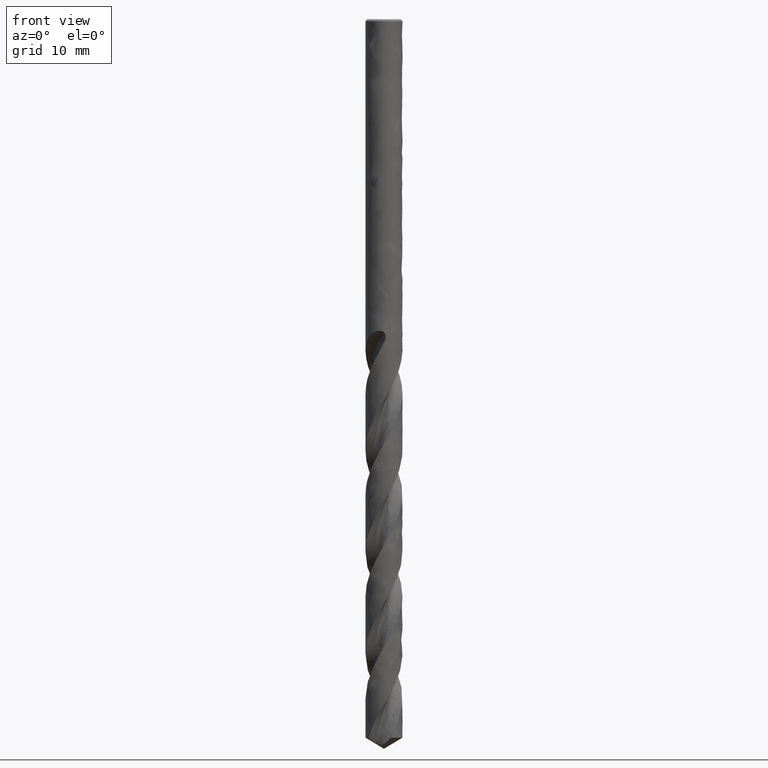
[diagram: clean part render]
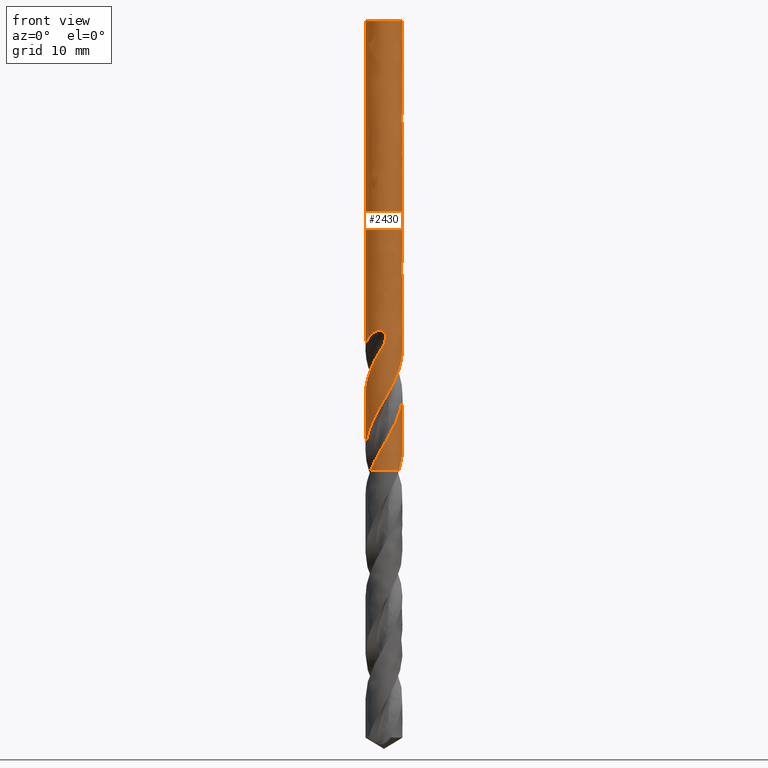
[diagram: same view with one face highlighted and labeled with its STEP entity id]
A machine part, front view. The second image highlights one B-rep face of the part: STEP entity #2430.
In plain terms, the highlighted face is a freeform B-spline surface patch.
Its self-contained STEP definition (entity closure, byte-faithful):
#73 = VERTEX_POINT('', #74);
#74 = CARTESIAN_POINT('', (-1.9, 1.27975590510899E-16, -0.190000000000001));
#90 = EDGE_CURVE('', #73, #73, #91, .T.);
#91 = CIRCLE('', #92, 1.9);
#92 = AXIS2_PLACEMENT_3D('', #93, #94, #95);
#93 = CARTESIAN_POINT('', (7.12385896764396E-34, 1.16341445919E-17, -0.190000000000001));
#94 = DIRECTION('', (3.74939945665464E-33, 6.12323399573677E-17, -1.));
#95 = DIRECTION('', (-1., 6.12323399573677E-17, 0.));
#139 = VERTEX_POINT('', #140);
#140 = CARTESIAN_POINT('', (1.75888895391081, 0.718546900216404, -33.1325859257356));
#185 = EDGE_CURVE('', #139, #186, #188, .T.);
#186 = VERTEX_POINT('', #187);
#187 = CARTESIAN_POINT('', (-1.9, 2.8330828782789E-15, -44.3677545926124));
#188 = B_SPLINE_CURVE_WITH_KNOTS('', 3, (#189, #190, #191, #192, #193, #194, #195, #196, #197, #198, #199, #200, #201, #202, #203, #204, #205, #206, #207, #208, #209, #210, #211, #212, #213, #214, #215, #216, #217, #218, #219, #220, #221, #222, #223, #224, #225, #226, #227, #228, #229, #230, #231, #232, #233, #234, #235, #236, #237, #238, #239, #240, #241, #242, #243, #244, #245, #246, #247, #248, #249, #250, #251, #252, #253, #254, #255, #256, #257, #258, #259, #260, #261, #262, #263, #264, #265, #266, #267, #268, #269, #270, #271, #272, #273, #274, #275, #276, #277, #278, #279, #280, #281, #282, #283, #284, #285, #286, #287, #288, #289, #290, #291, #292, #293, #294, #295, #296, #297, #298, #299, #300, #301, #302, #303, #304, #305, #306, #307, #308, #309, #310, #311, #312, #313, #314, #315, #316, #317, #318, #319, #320, #321, #322, #323, #324, #325, #326, #327, #328, #329, #330, #331, #332, #333), .UNSPECIFIED., .F., .U., (4, 3, 3, 3, 3, 3, 3, 3, 3, 3, 3, 3, 3, 3, 3, 3, 3, 3, 3, 3, 3, 3, 3, 3, 3, 3, 3, 3, 3, 3, 3, 3, 3, 3, 3, 3, 3, 3, 3, 3, 3, 3, 3, 3, 3, 3, 3, 3, 4), (0., 0.195956758396543, 0.391955979736511, 0.588008053128103, 0.784123385901248, 0.980305807307805, 1.17656375541319, 1.2154633726877, 1.41264482877814, 1.60987091223905, 1.80713127069354, 2.00439854338685, 2.09201056142056, 2.28933048957106, 2.42082547769446, 2.47923192314394, 2.6106934798828, 2.74209679389866, 2.87349976183457, 3.07067176473016, 3.26777120960437, 3.5633665056643, 3.76043455087663, 4.05597317396319, 4.25300119639093, 4.45003681638485, 4.58138713887242, 4.87683185365155, 5.1722359207027, 5.46757842776505, 5.76286568682077, 6.20542020243933, 6.64778368308405, 7.08995272913778, 7.1288762179124, 7.57345186475674, 8.01780684546018, 8.46195170170894, 8.90589490384879, 9.34964314080154, 9.79320150100322, 10.2365735573903, 10.6797615575674, 11.1227664996188, 11.5655881574798, 12.0082250725093, 12.4506745109417, 12.8929323849614, 13.0956215631655), .UNSPECIFIED.);
#189 = CARTESIAN_POINT('', (1.75888895391081, 0.718546900216404, -33.1325859257356));
#190 = CARTESIAN_POINT('', (1.77481259153574, 0.679568358500986, -33.1825226085516));
#191 = CARTESIAN_POINT('', (1.78932470950746, 0.640341525011016, -33.2327357136181));
#192 = CARTESIAN_POINT('', (1.80244385351994, 0.600995969128076, -33.283197347884));
#193 = CARTESIAN_POINT('', (1.81556584039161, 0.561641887241096, -33.3336699169579));
#194 = CARTESIAN_POINT('', (1.82730020846508, 0.522150949164337, -33.3844154428228));
#195 = CARTESIAN_POINT('', (1.8376739713249, 0.482653473120183, -33.4354129423675));
#196 = CARTESIAN_POINT('', (1.84805053151548, 0.443145346407988, -33.4864241936121));
#197 = CARTESIAN_POINT('', (1.85707123442944, 0.40361088646895, -33.5377084881918));
#198 = CARTESIAN_POINT('', (1.86477447654465, 0.364165006044803, -33.5892390171016));
#199 = CARTESIAN_POINT('', (1.87248020423589, 0.324706397767504, -33.6407861731723));
#200 = CARTESIAN_POINT('', (1.87887082072668, 0.285319445728444, -33.6926013117166));
#201 = CARTESIAN_POINT('', (1.88399163801491, 0.246120921276294, -33.7446659082913));
#202 = CARTESIAN_POINT('', (1.8891142070715, 0.206908987493011, -33.7967483155216));
#203 = CARTESIAN_POINT('', (1.89296826431, 0.167871120787611, -33.8491019523986));
#204 = CARTESIAN_POINT('', (1.89560838991365, 0.12910783124577, -33.901702624717));
#205 = CARTESIAN_POINT('', (1.8982495319181, 0.0903296185356169, -33.954323547347));
#206 = CARTESIAN_POINT('', (1.89967672846381, 0.0518112607859102, -34.0072113128099));
#207 = CARTESIAN_POINT('', (1.89995094099411, 0.0136536374494442, -34.0603489407143));
#208 = CARTESIAN_POINT('', (1.90000529172275, 0.00609054531369832, -34.0708811683683));
#209 = CARTESIAN_POINT('', (1.90001437976649, -0.0014586911317819, -34.0814236894458));
#210 = CARTESIAN_POINT('', (1.89997871597448, -0.00899326659021093, -34.0919764159545));
#211 = CARTESIAN_POINT('', (1.89979793685813, -0.0471858932536594, -34.1454679956793));
#212 = CARTESIAN_POINT('', (1.89846676255368, -0.0850084332835649, -34.1992332911044));
#213 = CARTESIAN_POINT('', (1.89605459792134, -0.122380397537165, -34.253247884166));
#214 = CARTESIAN_POINT('', (1.89364188735244, -0.159760820053153, -34.3072747021563));
#215 = CARTESIAN_POINT('', (1.89014672752783, -0.1967033860192, -34.36156857497));
#216 = CARTESIAN_POINT('', (1.88564374476651, -0.233125862621307, -34.4161134240976));
#217 = CARTESIAN_POINT('', (1.881139979453, -0.269554668914346, -34.4706677523179));
#218 = CARTESIAN_POINT('', (1.87562691556229, -0.305472354945141, -34.5254916919211));
#219 = CARTESIAN_POINT('', (1.86918536108429, -0.340802121337601, -34.5805719110571));
#220 = CARTESIAN_POINT('', (1.8627435808212, -0.37613312608552, -34.6356540608283));
#221 = CARTESIAN_POINT('', (1.85537143375722, -0.410886837065107, -34.6910084946987));
#222 = CARTESIAN_POINT('', (1.84715353857494, -0.444998657222765, -34.7466202702249));
#223 = CARTESIAN_POINT('', (1.84350373710976, -0.460148688761256, -34.7713190447036));
#224 = CARTESIAN_POINT('', (1.83968689455634, -0.475173447423165, -34.7960708855337));
#225 = CARTESIAN_POINT('', (1.83571044866035, -0.490068514270423, -34.8208740875197));
#226 = CARTESIAN_POINT('', (1.82675469080772, -0.52361520781841, -34.8767358989882));
#227 = CARTESIAN_POINT('', (1.81698573398486, -0.556516454760271, -34.9328644908948));
#228 = CARTESIAN_POINT('', (1.80648840538559, -0.588727136462577, -34.9892418471986));
#229 = CARTESIAN_POINT('', (1.79949293304569, -0.610192496031636, -35.0268119997275));
#230 = CARTESIAN_POINT('', (1.79217318741098, -0.63135336823105, -35.0644985275866));
#231 = CARTESIAN_POINT('', (1.78456091983655, -0.652182737729486, -35.1023060057411));
#232 = CARTESIAN_POINT('', (1.78117976062145, -0.661434568926396, -35.1190990443347));
#233 = CARTESIAN_POINT('', (1.7777408724839, -0.670621155633316, -35.1359166516227));
#234 = CARTESIAN_POINT('', (1.77424757424183, -0.679739321576289, -35.1527597713031));
#235 = CARTESIAN_POINT('', (1.76638483886183, -0.700262540892957, -35.1906703600485));
#236 = CARTESIAN_POINT('', (1.75824786374495, -0.720436393566449, -35.2287156960302));
#237 = CARTESIAN_POINT('', (1.74985385821417, -0.74027797136829, -35.2668744478348));
#238 = CARTESIAN_POINT('', (1.74146357156329, -0.760110758558269, -35.3050162937874));
#239 = CARTESIAN_POINT('', (1.73281639994459, -0.779613565956086, -35.343275054604));
#240 = CARTESIAN_POINT('', (1.72389736628506, -0.79886035733128, -35.3815967016305));
#241 = CARTESIAN_POINT('', (1.7149783561158, -0.818107098015755, -35.4199182477284));
#242 = CARTESIAN_POINT('', (1.70578720676221, -0.837100026628295, -35.4583054432817));
#243 = CARTESIAN_POINT('', (1.69626828289596, -0.855963733134283, -35.4966731032311));
#244 = CARTESIAN_POINT('', (1.68198500365501, -0.884268990254762, -35.5542443170132));
#245 = CARTESIAN_POINT('', (1.66694945287442, -0.912301838115356, -35.611768442479));
#246 = CARTESIAN_POINT('', (1.65118681003006, -0.939990488453337, -35.6692534147404));
#247 = CARTESIAN_POINT('', (1.63542996773629, -0.967668949547139, -35.7267172329039));
#248 = CARTESIAN_POINT('', (1.61894492070922, -0.995007895088084, -35.7841506531806));
#249 = CARTESIAN_POINT('', (1.60173800586912, -1.02197620351671, -35.841536174941));
#250 = CARTESIAN_POINT('', (1.57593233660564, -1.06242129517732, -35.9275987729616));
#251 = CARTESIAN_POINT('', (1.54848582382798, -1.10205723491537, -36.0135696843395));
#252 = CARTESIAN_POINT('', (1.51945245529155, -1.14072969458523, -36.0994184651005));
#253 = CARTESIAN_POINT('', (1.50009643285254, -1.16651192499374, -36.1566522967411));
#254 = CARTESIAN_POINT('', (1.48003240172224, -1.19186980711374, -36.2138439007296));
#255 = CARTESIAN_POINT('', (1.45928568162558, -1.21675194653741, -36.2709888325844));
#256 = CARTESIAN_POINT('', (1.4281722807476, -1.25406714503544, -36.3566878329401));
#257 = CARTESIAN_POINT('', (1.39551365961523, -1.29032261168423, -36.4423081887346));
#258 = CARTESIAN_POINT('', (1.36140593707378, -1.32535801748067, -36.5278299404637));
#259 = CARTESIAN_POINT('', (1.33866719297437, -1.34871522422046, -36.5848450995713));
#260 = CARTESIAN_POINT('', (1.31527778496673, -1.37153739668462, -36.6418262391187));
#261 = CARTESIAN_POINT('', (1.29127684437215, -1.39377333565695, -36.6987723173556));
#262 = CARTESIAN_POINT('', (1.26727497828112, -1.41601013206579, -36.7557205914812));
#263 = CARTESIAN_POINT('', (1.24265712765192, -1.43766374724432, -36.812643259253));
#264 = CARTESIAN_POINT('', (1.21750005968586, -1.45866157989608, -36.8695632344072));
#265 = CARTESIAN_POINT('', (1.2007295438254, -1.47265941485827, -36.9075079323897));
#266 = CARTESIAN_POINT('', (1.18372217639676, -1.48636411916083, -36.9454579503884));
#267 = CARTESIAN_POINT('', (1.16649180299948, -1.49976560619819, -36.9834119234165));
#268 = CARTESIAN_POINT('', (1.12773572948943, -1.52990941125618, -37.0687813425673));
#269 = CARTESIAN_POINT('', (1.08783798956157, -1.55853002214387, -37.1541914312189));
#270 = CARTESIAN_POINT('', (1.04689332476051, -1.58556436847322, -37.2395805317313));
#271 = CARTESIAN_POINT('', (1.00595429318798, -1.61259499537657, -37.3249578842829));
#272 = CARTESIAN_POINT('', (0.963946350392452, -1.63805247730264, -37.4103418982293));
#273 = CARTESIAN_POINT('', (0.921021566003071, -1.66184213298293, -37.4957085579586));
#274 = CARTESIAN_POINT('', (0.87810572681635, -1.68562683107765, -37.5810574279171));
#275 = CARTESIAN_POINT('', (0.834261391894203, -1.70775131843371, -37.6664232114492));
#276 = CARTESIAN_POINT('', (0.789641306147603, -1.72813963776817, -37.7517770344594));
#277 = CARTESIAN_POINT('', (0.745029567221168, -1.74852414317821, -37.8371148908258));
#278 = CARTESIAN_POINT('', (0.699623607599091, -1.76718200136682, -37.922471104195));
#279 = CARTESIAN_POINT('', (0.653571512077902, -1.78405276788558, -38.0078108181344));
#280 = CARTESIAN_POINT('', (0.584552066769719, -1.80933741419473, -38.1357116150947));
#281 = CARTESIAN_POINT('', (0.514034424991575, -1.83062035228118, -38.2636659764314));
#282 = CARTESIAN_POINT('', (0.442555955771773, -1.84774030264294, -38.3915696384991));
#283 = CARTESIAN_POINT('', (0.371108341253516, -1.86485286293375, -38.5194180891252));
#284 = CARTESIAN_POINT('', (0.298640892482337, -1.87782061660059, -38.6473222192271));
#285 = CARTESIAN_POINT('', (0.225699137884384, -1.88654708373753, -38.775174387277));
#286 = CARTESIAN_POINT('', (0.152789443799655, -1.89526971527966, -38.9029703597205));
#287 = CARTESIAN_POINT('', (0.079346264851939, -1.8997618678571, -39.03082142558));
#288 = CARTESIAN_POINT('', (0.00592329900333455, -1.89999076695913, -39.15862101109));
#289 = CARTESIAN_POINT('', (-0.000540016356511325, -1.90001091660937, -39.1698710200547));
#290 = CARTESIAN_POINT('', (-0.00700342983564511, -1.89999808582981, -39.1811210800581));
#291 = CARTESIAN_POINT('', (-0.0134665627581444, -1.89995227616069, -39.1923711186116));
#292 = CARTESIAN_POINT('', (-0.0872870652392733, -1.89942904805545, -39.3208666189994));
#293 = CARTESIAN_POINT('', (-0.16110460878274, -1.89459602708529, -39.4494181063898));
#294 = CARTESIAN_POINT('', (-0.234356924886226, -1.8854911380746, -39.5779172626349));
#295 = CARTESIAN_POINT('', (-0.307572882034782, -1.87639076829644, -39.7063526380294));
#296 = CARTESIAN_POINT('', (-0.380285292851698, -1.86301517647771, -39.8348438446482));
#297 = CARTESIAN_POINT('', (-0.451940876828381, -1.84546726978639, -39.96328288474));
#298 = CARTESIAN_POINT('', (-0.523562576655765, -1.82792766106513, -40.0916611891938));
#299 = CARTESIAN_POINT('', (-0.594188358047741, -1.80620501732485, -40.2200951822233));
#300 = CARTESIAN_POINT('', (-0.663281424499832, -1.78046559975582, -40.3484771333152));
#301 = CARTESIAN_POINT('', (-0.732343120779443, -1.75473786859774, -40.4768007954331));
#302 = CARTESIAN_POINT('', (-0.799931267193938, -1.72497549867368, -40.6051800403367));
#303 = CARTESIAN_POINT('', (-0.865532832696651, -1.69140560349202, -40.7335073291104));
#304 = CARTESIAN_POINT('', (-0.931105588159181, -1.65785045109922, -40.8617782607785));
#305 = CARTESIAN_POINT('', (-0.994748242543219, -1.62046312664606, -40.9901047200203));
#306 = CARTESIAN_POINT('', (-1.05597850059231, -1.57952822269398, -41.1183792520201));
#307 = CARTESIAN_POINT('', (-1.11718255864443, -1.53861083449955, -41.2465988962493));
#308 = CARTESIAN_POINT('', (-1.17602713003791, -1.49411493387358, -41.374874052107));
#309 = CARTESIAN_POINT('', (-1.2320670866555, -1.44637847535844, -41.5030972962389));
#310 = CARTESIAN_POINT('', (-1.28808350531593, -1.39866206715711, -41.6312666839189));
#311 = CARTESIAN_POINT('', (-1.34134398215695, -1.34766839092925, -41.7594915529828));
#312 = CARTESIAN_POINT('', (-1.39144633247589, -1.29378402519099, -41.8876645467488));
#313 = CARTESIAN_POINT('', (-1.44152788390012, -1.2399220283684, -42.0157843323004));
#314 = CARTESIAN_POINT('', (-1.48849520494724, -1.18312737077095, -42.1439595409214));
#315 = CARTESIAN_POINT('', (-1.53199421894346, -1.12382993069406, -42.2720829397455));
#316 = CARTESIAN_POINT('', (-1.57547526573848, -1.06455698333409, -42.4001534173957));
#317 = CARTESIAN_POINT('', (-1.61552664840231, -1.00273456349997, -42.5282792301784));
#318 = CARTESIAN_POINT('', (-1.65184692027021, -0.938829990996147, -42.6563533275956));
#319 = CARTESIAN_POINT('', (-1.68815216537206, -0.874951857695878, -42.784374436987));
#320 = CARTESIAN_POINT('', (-1.72075926080672, -0.808940742689634, -42.9124507669133));
#321 = CARTESIAN_POINT('', (-1.74942322199792, -0.74129507642668, -43.0404755002671));
#322 = CARTESIAN_POINT('', (-1.77807522473754, -0.673677631574533, -43.1684468223857));
#323 = CARTESIAN_POINT('', (-1.80281098957582, -0.604371296757858, -43.2964732310131));
#324 = CARTESIAN_POINT('', (-1.82344508903401, -0.533898873643491, -43.4244481774441));
#325 = CARTESIAN_POINT('', (-1.84407044902512, -0.463456298762814, -43.5523689207424));
#326 = CARTESIAN_POINT('', (-1.86061464453141, -0.391790480226807, -43.6803446084261));
#327 = CARTESIAN_POINT('', (-1.87295411603344, -0.319441511443934, -43.8082689710615));
#328 = CARTESIAN_POINT('', (-1.88528824499595, -0.24712386711648, -43.9361379471301));
#329 = CARTESIAN_POINT('', (-1.8934314931128, -0.17406386956496, -44.0640617325992));
#330 = CARTESIAN_POINT('', (-1.89732364910649, -0.100811559564791, -44.191934316293));
#331 = CARTESIAN_POINT('', (-1.8991074452719, -0.0672396292777545, -44.2505390137473));
#332 = CARTESIAN_POINT('', (-1.9, -0.0336180340909915, -44.3091491766551));
#333 = CARTESIAN_POINT('', (-1.9, 2.73160155493426E-15, -44.3677545926124));
#506 = VERTEX_POINT('', #507);
#507 = CARTESIAN_POINT('', (1.8998305610442, -0.0253739890931736, -38.5472392469525));
#537 = EDGE_CURVE('', #538, #506, #540, .T.);
#538 = VERTEX_POINT('', #539);
#539 = CARTESIAN_POINT('', (1.28039807057198, 1.40377376413562, -35.7397321612101));
#540 = B_SPLINE_CURVE_WITH_KNOTS('', 3, (#541, #542, #543, #544, #545, #546, #547, #548, #549, #550, #551, #552, #553, #554, #555, #556, #557, #558, #559, #560, #561, #562, #563, #564, #565, #566, #567, #568, #569, #570, #571, #572, #573, #574, #575, #576, #577, #578, #579, #580, #581, #582, #583, #584, #585, #586), .UNSPECIFIED., .F., .U., (4, 3, 3, 3, 3, 3, 3, 3, 3, 3, 3, 3, 3, 3, 3, 4), (0., 0.131367445252244, 0.426860119382218, 0.623871718991579, 0.919274784355049, 1.11624229441769, 1.31321360037919, 1.51015659043777, 1.70708407825923, 1.90400112580175, 2.19922233130223, 2.64161574660911, 3.08381642082228, 3.17134428687576, 3.21026800024567, 3.23372368174076), .UNSPECIFIED.);
#541 = CARTESIAN_POINT('', (1.28039807057198, 1.40377376413562, -35.7397321612101));
#542 = CARTESIAN_POINT('', (1.29582549604991, 1.38970223329461, -35.7782221090152));
#543 = CARTESIAN_POINT('', (1.31107073855273, 1.37533108994948, -35.8166772284345));
#544 = CARTESIAN_POINT('', (1.32612811378341, 1.36065580726107, -35.8550881780231));
#545 = CARTESIAN_POINT('', (1.35999757104315, 1.32764581367486, -35.9414882308522));
#546 = CARTESIAN_POINT('', (1.39292224788722, 1.29308647604948, -36.0276866032639));
#547 = CARTESIAN_POINT('', (1.42468727076964, 1.25708638545923, -36.113690938848));
#548 = CARTESIAN_POINT('', (1.44586572464543, 1.233084316866, -36.1710319601666));
#549 = CARTESIAN_POINT('', (1.46653253610041, 1.20843862513266, -36.2282986058287));
#550 = CARTESIAN_POINT('', (1.4866303138902, 1.18318650677857, -36.2854915142853));
#551 = CARTESIAN_POINT('', (1.51676531699596, 1.14532298410524, -36.3712476855394));
#552 = CARTESIAN_POINT('', (1.5456296330949, 1.10608395783723, -36.4568643129482));
#553 = CARTESIAN_POINT('', (1.57306290087736, 1.06558580596933, -36.5423230818583));
#554 = CARTESIAN_POINT('', (1.591354730183, 1.03858263277699, -36.5993048904409));
#555 = CARTESIAN_POINT('', (1.6090170368045, 1.01100948973066, -36.6562250600055));
#556 = CARTESIAN_POINT('', (1.62598700780901, 0.982937561819858, -36.7130992706692));
#557 = CARTESIAN_POINT('', (1.64295730585372, 0.954865092915267, -36.7699745773957));
#558 = CARTESIAN_POINT('', (1.65923739848551, 0.926288831419241, -36.8268135226904));
#559 = CARTESIAN_POINT('', (1.67475613788976, 0.897324845638732, -36.883656387646));
#560 = CARTESIAN_POINT('', (1.69027264637456, 0.868365023619059, -36.9404910810711));
#561 = CARTESIAN_POINT('', (1.70502568808182, 0.839025488572187, -36.9973470817475));
#562 = CARTESIAN_POINT('', (1.71900092597171, 0.809342830022234, -37.0542087402796));
#563 = CARTESIAN_POINT('', (1.73297506381001, 0.779662507923104, -37.1110659229839));
#564 = CARTESIAN_POINT('', (1.74617448638357, 0.749633287063078, -37.1679377158817));
#565 = CARTESIAN_POINT('', (1.75858901405916, 0.71928066818902, -37.2248018988388));
#566 = CARTESIAN_POINT('', (1.77100288356796, 0.688929658484972, -37.2816630670926));
#567 = CARTESIAN_POINT('', (1.78263519579591, 0.6582461781599, -37.3385237459266));
#568 = CARTESIAN_POINT('', (1.79346618907686, 0.627279067591219, -37.395376257296));
#569 = CARTESIAN_POINT('', (1.80970418844298, 0.580852677255572, -37.4806104569331));
#570 = CARTESIAN_POINT('', (1.82414435955775, 0.533775807445821, -37.5658542270085));
#571 = CARTESIAN_POINT('', (1.83673150133983, 0.48622771618437, -37.6510874013594));
#572 = CARTESIAN_POINT('', (1.85559352255706, 0.414976186509132, -37.7788105946668));
#573 = CARTESIAN_POINT('', (1.87030755976191, 0.342609157255745, -37.9065958761914));
#574 = CARTESIAN_POINT('', (1.88076714088389, 0.269657118896259, -38.0343235853858));
#575 = CARTESIAN_POINT('', (1.89122216499613, 0.196736864137469, -38.1619956464229));
#576 = CARTESIAN_POINT('', (1.89743358735857, 0.12317551044754, -38.2897207569544));
#577 = CARTESIAN_POINT('', (1.89935414206426, 0.0495362798699944, -38.4173937824621));
#578 = CARTESIAN_POINT('', (1.89973429086282, 0.034960352952331, -38.4426649955718));
#579 = CARTESIAN_POINT('', (1.89994664563494, 0.0203799036849946, -38.4679366816716));
#580 = CARTESIAN_POINT('', (1.89999114956294, 0.00579927430639445, -38.4932080021155));
#581 = CARTESIAN_POINT('', (1.900010940496, -0.000684743461601987, -38.5044461789132));
#582 = CARTESIAN_POINT('', (1.89999753941857, -0.00716886596041877, -38.5156844027514));
#583 = CARTESIAN_POINT('', (1.89995094764144, -0.0136527124212837, -38.5269225992309));
#584 = CARTESIAN_POINT('', (1.89992287113511, -0.017559920246082, -38.5336948091354));
#585 = CARTESIAN_POINT('', (1.89988274194958, -0.0214670401939055, -38.5404670304973));
#586 = CARTESIAN_POINT('', (1.89983056104419, -0.025373989093227, -38.5472392469526));
#589 = VERTEX_POINT('', #590);
#590 = CARTESIAN_POINT('', (0.864206171825234, 1.69208383142774, -34.8514155961111));
#599 = EDGE_CURVE('', #600, #589, #602, .T.);
#600 = VERTEX_POINT('', #601);
#601 = CARTESIAN_POINT('', (0.427751960259633, 1.8512234496392, -32.));
#602 = B_SPLINE_CURVE_WITH_KNOTS('', 3, (#603, #604, #605, #606, #607, #608, #609, #610, #611, #612, #613, #614, #615, #616, #617, #618, #619, #620, #621, #622, #623, #624, #625, #626, #627, #628, #629, #630, #631, #632, #633, #634, #635, #636, #637, #638, #639, #640, #641, #642, #643, #644, #645, #646, #647, #648, #649, #650, #651, #652, #653, #654, #655, #656, #657, #658, #659, #660, #661, #662, #663, #664, #665, #666, #667, #668, #669, #670, #671, #672, #673, #674, #675, #676, #677, #678, #679, #680, #681, #682, #683, #684, #685, #686, #687, #688, #689, #690, #691, #692, #693, #694, #695, #696, #697, #698, #699, #700, #701, #702, #703, #704, #705, #706, #707, #708), .UNSPECIFIED., .F., .U., (4, 3, 3, 3, 3, 3, 3, 3, 3, 3, 3, 3, 3, 3, 3, 3, 3, 3, 3, 3, 3, 3, 3, 3, 3, 3, 3, 3, 3, 3, 3, 3, 3, 3, 3, 4), (0., 0.0873629605212161, 0.174507815838116, 0.261410331657644, 0.319349699367411, 0.37723188191172, 0.435081472253333, 0.473752127815154, 0.512476702920778, 0.570461454747365, 0.62847253783245, 0.686531689473661, 0.773565024721625, 0.831776572720489, 0.857700674376559, 0.988843334027458, 1.12033938845752, 1.25207487416912, 1.38395532561015, 1.51590956818053, 1.64788857450238, 1.73573251009251, 1.77471080818673, 1.9067551739594, 2.03878248633691, 2.17077982768571, 2.30273736410078, 2.43465001899647, 2.56651274924828, 2.69832321369126, 2.83008418729105, 2.96179505951588, 3.09345426730499, 3.22505850398501, 3.42255413557538, 3.47636369661806), .UNSPECIFIED.);
#603 = CARTESIAN_POINT('', (0.427751960258633, 1.85122344963943, -32.));
#604 = CARTESIAN_POINT('', (0.399378575813954, 1.85777953060186, -32.0000270578561));
#605 = CARTESIAN_POINT('', (0.37079713800439, 1.86369178588485, -32.0015256611667));
#606 = CARTESIAN_POINT('', (0.342329611499141, 1.86890621409713, -32.0047569995351));
#607 = CARTESIAN_POINT('', (0.31393315533821, 1.87410762427608, -32.0079802707351));
#608 = CARTESIAN_POINT('', (0.285531271582478, 1.87863446969218, -32.012946389041));
#609 = CARTESIAN_POINT('', (0.2575856930654, 1.88245839548395, -32.0198908184965));
#610 = CARTESIAN_POINT('', (0.229717827884664, 1.88627168739205, -32.0268159363181));
#611 = CARTESIAN_POINT('', (0.202155097192997, 1.889404621159, -32.0357545737368));
#612 = CARTESIAN_POINT('', (0.175501908426569, 1.89187713135358, -32.0468275400815));
#613 = CARTESIAN_POINT('', (0.157731779564213, 1.89352559545129, -32.0542100728268));
#614 = CARTESIAN_POINT('', (0.140303500680769, 1.89488819359186, -32.0625646859088));
#615 = CARTESIAN_POINT('', (0.123417697512506, 1.89598736070176, -32.0718737237982));
#616 = CARTESIAN_POINT('', (0.106548560343308, 1.89708544295252, -32.0811735738265));
#617 = CARTESIAN_POINT('', (0.0901657504409504, 1.89792440557852, -32.0914577172941));
#618 = CARTESIAN_POINT('', (0.0744643942087731, 1.89854024292221, -32.1026536514154));
#619 = CARTESIAN_POINT('', (0.0587718790700453, 1.89915573350124, -32.1138432813487));
#620 = CARTESIAN_POINT('', (0.0437059445774316, 1.89955088650091, -32.1259828579464));
#621 = CARTESIAN_POINT('', (0.0294325042844673, 1.89977201992543, -32.1389467184937));
#622 = CARTESIAN_POINT('', (0.0198911524790009, 1.89991984075601, -32.1476126568869));
#623 = CARTESIAN_POINT('', (0.0106839970036198, 1.89999050261956, -32.1566625285304));
#624 = CARTESIAN_POINT('', (0.00184896658313239, 1.89999910034784, -32.1660486830708));
#625 = CARTESIAN_POINT('', (-0.00699838275987742, 1.90000771006417, -32.1754479249811));
#626 = CARTESIAN_POINT('', (-0.0154860633837973, 1.89995416124878, -32.1851985334646));
#627 = CARTESIAN_POINT('', (-0.0235868590679218, 1.89985358911668, -32.1952478323229));
#628 = CARTESIAN_POINT('', (-0.035716692024401, 1.89970299611198, -32.2102952821332));
#629 = CARTESIAN_POINT('', (-0.0470083242260945, 1.89944692520589, -32.2260522939049));
#630 = CARTESIAN_POINT('', (-0.0574153040939263, 1.89913229735472, -32.2423365516695));
#631 = CARTESIAN_POINT('', (-0.0678270098400011, 1.89881752662896, -32.2586282042231));
#632 = CARTESIAN_POINT('', (-0.0773836244564499, 1.89844347426823, -32.2754923121718));
#633 = CARTESIAN_POINT('', (-0.0860838901830413, 1.89804888341975, -32.292757025156));
#634 = CARTESIAN_POINT('', (-0.0947913650357021, 1.89765396560939, -32.3100360438518));
#635 = CARTESIAN_POINT('', (-0.102662921077522, 1.89723757514246, -32.3277568375848));
#636 = CARTESIAN_POINT('', (-0.109728671272793, 1.89682883220936, -32.3457692962973));
#637 = CARTESIAN_POINT('', (-0.120320555379602, 1.8962161077771, -32.3727707993068));
#638 = CARTESIAN_POINT('', (-0.129137301324025, 1.89562017283204, -32.4005178873763));
#639 = CARTESIAN_POINT('', (-0.136349304706665, 1.89510128149026, -32.4286134806947));
#640 = CARTESIAN_POINT('', (-0.14117299530614, 1.89475422517945, -32.4474049928705));
#641 = CARTESIAN_POINT('', (-0.145290105608318, 1.89443999295445, -32.4663899327876));
#642 = CARTESIAN_POINT('', (-0.148758175525728, 1.89416762859465, -32.4854793978832));
#643 = CARTESIAN_POINT('', (-0.150302655962686, 1.89404633305118, -32.4939807563029));
#644 = CARTESIAN_POINT('', (-0.151719093191493, 1.89393320914587, -32.5025064045665));
#645 = CARTESIAN_POINT('', (-0.153012547139731, 1.89382870408541, -32.5110497811229));
#646 = CARTESIAN_POINT('', (-0.1595557629147, 1.89330004269694, -32.5542682941062));
#647 = CARTESIAN_POINT('', (-0.162972235906951, 1.89299784902426, -32.5980343351397));
#648 = CARTESIAN_POINT('', (-0.163866714003292, 1.89292041566511, -32.6417393340877));
#649 = CARTESIAN_POINT('', (-0.164763602481503, 1.89284277364353, -32.6855621064475));
#650 = CARTESIAN_POINT('', (-0.16313062823443, 1.89298758224214, -32.7294841638269));
#651 = CARTESIAN_POINT('', (-0.159457389514113, 1.89329695001322, -32.7731609016104));
#652 = CARTESIAN_POINT('', (-0.155777462469511, 1.89360688108881, -32.8169171670827));
#653 = CARTESIAN_POINT('', (-0.150040760958747, 1.89408107653566, -32.8605323172866));
#654 = CARTESIAN_POINT('', (-0.142621695060472, 1.8946395573032, -32.9038092655251));
#655 = CARTESIAN_POINT('', (-0.135194464996757, 1.89519865263994, -32.9471338370318));
#656 = CARTESIAN_POINT('', (-0.126067789999008, 1.89584237758223, -32.9901901638079));
#657 = CARTESIAN_POINT('', (-0.115532307680557, 1.89648419078093, -33.0328643541152));
#658 = CARTESIAN_POINT('', (-0.104990930438864, 1.89712636309367, -33.0755624219318));
#659 = CARTESIAN_POINT('', (-0.0930266918137154, 1.89776695179842, -33.117927531347));
#660 = CARTESIAN_POINT('', (-0.0798713750819791, 1.89832045857451, -33.159895248543));
#661 = CARTESIAN_POINT('', (-0.066713589502043, 1.89887406922678, -33.2018708417882));
#662 = CARTESIAN_POINT('', (-0.0523521985566535, 1.89934086834799, -33.2434845669624));
#663 = CARTESIAN_POINT('', (-0.0369769814668154, 1.89964015088164, -33.2847022496219));
#664 = CARTESIAN_POINT('', (-0.026743387372083, 1.89983935040846, -33.3121363360089));
#665 = CARTESIAN_POINT('', (-0.0160562880750427, 1.8999645293869, -33.3394054441342));
#666 = CARTESIAN_POINT('', (-0.00496500884417214, 1.89999351280137, -33.3665048520507));
#667 = CARTESIAN_POINT('', (-4.35628137455019E-5, 1.90000637338374, -33.3785294590181));
#668 = CARTESIAN_POINT('', (0.0049578911532801, 1.90000031576415, -33.3905216420917));
#669 = CARTESIAN_POINT('', (0.0100352791988164, 1.89997349801817, -33.4024812148512));
#670 = CARTESIAN_POINT('', (0.0272356321396755, 1.89988264920146, -33.4429959186006));
#671 = CARTESIAN_POINT('', (0.0453114835696172, 1.89955285615619, -33.483147710358));
#672 = CARTESIAN_POINT('', (0.0641205370459333, 1.89891773300722, -33.5229361224979));
#673 = CARTESIAN_POINT('', (0.0829271613521771, 1.89828269188376, -33.5627193960049));
#674 = CARTESIAN_POINT('', (0.102474713642829, 1.89734209686813, -33.6021552434968));
#675 = CARTESIAN_POINT('', (0.122634062792268, 1.89603820811797, -33.6412538593541));
#676 = CARTESIAN_POINT('', (0.1427888356429, 1.89473461535874, -33.6803435995801));
#677 = CARTESIAN_POINT('', (0.163561898194954, 1.89306740607678, -33.7191088491734));
#678 = CARTESIAN_POINT('', (0.184831045245246, 1.89098849407224, -33.7575695241845));
#679 = CARTESIAN_POINT('', (0.206093778401286, 1.8889102089815, -33.7960186010483));
#680 = CARTESIAN_POINT('', (0.227857881595609, 1.88641993448952, -33.8341736192015));
#681 = CARTESIAN_POINT('', (0.250010463514299, 1.88347943130085, -33.8720599116725));
#682 = CARTESIAN_POINT('', (0.272155510876331, 1.88053992823885, -33.9099333182225));
#683 = CARTESIAN_POINT('', (0.294693860143198, 1.87714980623487, -33.9475465080974));
#684 = CARTESIAN_POINT('', (0.317517116275166, 1.87328131386407, -33.9849306286694));
#685 = CARTESIAN_POINT('', (0.340331734547971, 1.86941428559166, -34.0223006005692));
#686 = CARTESIAN_POINT('', (0.363435463320985, 1.86506845528672, -34.0594486451062));
#687 = CARTESIAN_POINT('', (0.386721600650568, 1.86022751393217, -34.0964120947484));
#688 = CARTESIAN_POINT('', (0.409998508163662, 1.85538849135873, -34.1333608933624));
#689 = CARTESIAN_POINT('', (0.433461121151648, 1.85005408159117, -34.1701315430062));
#690 = CARTESIAN_POINT('', (0.457010892252809, 1.8442182745983, -34.2067620756215));
#691 = CARTESIAN_POINT('', (0.480551821127113, 1.83838465877446, -34.2433788545795));
#692 = CARTESIAN_POINT('', (0.504183332515099, 1.83204910919476, -34.2798608557659));
#693 = CARTESIAN_POINT('', (0.527807506129622, 1.82521758606291, -34.316250739248));
#694 = CARTESIAN_POINT('', (0.551422696783954, 1.81838866057961, -34.3526267856799));
#695 = CARTESIAN_POINT('', (0.575033719330317, 1.81106315459858, -34.3889155574267));
#696 = CARTESIAN_POINT('', (0.598542066919887, 1.80326021253937, -34.4251646939094));
#697 = CARTESIAN_POINT('', (0.622041193209102, 1.7954603312343, -34.4613996114354));
#698 = CARTESIAN_POINT('', (0.645439597946633, 1.7871827648538, -34.4976002412874));
#699 = CARTESIAN_POINT('', (0.668643155850538, 1.77845897623051, -34.5338149723441));
#700 = CARTESIAN_POINT('', (0.691837025671594, 1.76973883001358, -34.5700145828181));
#701 = CARTESIAN_POINT('', (0.714839182230757, 1.76057177218748, -34.6062327074069));
#702 = CARTESIAN_POINT('', (0.73756355649928, 1.75099971448463, -34.6425147535349));
#703 = CARTESIAN_POINT('', (0.771665533471115, 1.73663513451872, -34.6969624354347));
#704 = CARTESIAN_POINT('', (0.805148061440961, 1.72135303226024, -34.7515685023273));
#705 = CARTESIAN_POINT('', (0.837753322903375, 1.70533555934437, -34.8064699917571));
#706 = CARTESIAN_POINT('', (0.846636936140013, 1.70097144668185, -34.8214284241184));
#707 = CARTESIAN_POINT('', (0.855456186642398, 1.69655275374585, -34.8364094222219));
#708 = CARTESIAN_POINT('', (0.864206171825235, 1.69208383142774, -34.8514155961111));
#710 = EDGE_CURVE('', #600, #711, #713, .T.);
#711 = VERTEX_POINT('', #712);
#712 = CARTESIAN_POINT('', (0.429320594921007, 1.85086029369498, -32.));
#713 = LINE('', #714, #715);
#714 = CARTESIAN_POINT('', (0.427751960259633, 1.8512234496392, -32.));
#715 = VECTOR('', #716, 0.00161012326878398);
#716 = DIRECTION('', (0.00156863466137336, -0.000363155944213656, 0.));
#718 = EDGE_CURVE('', #711, #139, #719, .T.);
#719 = B_SPLINE_CURVE_WITH_KNOTS('', 3, (#720, #721, #722, #723, #724, #725, #726, #727, #728, #729, #730, #731, #732, #733, #734, #735, #736, #737, #738, #739, #740, #741, #742, #743, #744, #745, #746, #747, #748, #749, #750, #751, #752, #753, #754, #755, #756, #757, #758, #759, #760, #761, #762, #763, #764, #765, #766, #767, #768), .UNSPECIFIED., .F., .U., (4, 3, 3, 3, 3, 3, 3, 3, 3, 3, 3, 3, 3, 3, 3, 3, 4), (0., 0.0880016086724664, 0.175761601736798, 0.263337861647212, 0.350775888872783, 0.438110000910127, 0.56877252488704, 0.699242540137486, 0.829585294035129, 0.95984429919139, 1.09004957565462, 1.28444062159858, 1.47878600142891, 1.67314286239593, 1.86756522417851, 2.06209631355298, 2.19380329009097), .UNSPECIFIED.);
#720 = CARTESIAN_POINT('', (0.429320594935948, 1.85086029369152, -32.));
#721 = CARTESIAN_POINT('', (0.457895790219004, 1.84423206795177, -32.0000272267115));
#722 = CARTESIAN_POINT('', (0.486348456741657, 1.83693169883662, -32.0015403004786));
#723 = CARTESIAN_POINT('', (0.514461749502838, 1.829024086309, -32.0042949941917));
#724 = CARTESIAN_POINT('', (0.542497854921314, 1.8211381847778, -32.0070421246681));
#725 = CARTESIAN_POINT('', (0.570264716046735, 1.81263032098753, -32.0110298212824));
#726 = CARTESIAN_POINT('', (0.597620881984084, 1.80356571308521, -32.0160528128846));
#727 = CARTESIAN_POINT('', (0.624919775416375, 1.7945200827254, -32.0210652884184));
#728 = CARTESIAN_POINT('', (0.651860784503206, 1.78490384550031, -32.0271178559303));
#729 = CARTESIAN_POINT('', (0.678350551114959, 1.7747790087225, -32.0340430178265));
#730 = CARTESIAN_POINT('', (0.704798505578496, 1.76467015325485, -32.040957248864));
#731 = CARTESIAN_POINT('', (0.730835700297256, 1.75403983921358, -32.0487515403533));
#732 = CARTESIAN_POINT('', (0.756399353960722, 1.74294578726012, -32.0572903615623));
#733 = CARTESIAN_POINT('', (0.781932626656473, 1.7318649199648, -32.0658190348615));
#734 = CARTESIAN_POINT('', (0.807024045640769, 1.72030844838657, -32.0751007692976));
#735 = CARTESIAN_POINT('', (0.831630537136022, 1.70832978364918, -32.0850256909709));
#736 = CARTESIAN_POINT('', (0.868444861000807, 1.69040823464676, -32.0998745889083));
#737 = CARTESIAN_POINT('', (0.904237481570498, 1.67151000103208, -32.1161871547064));
#738 = CARTESIAN_POINT('', (0.938915404355345, 1.65179837252137, -32.1336759940906));
#739 = CARTESIAN_POINT('', (0.973542235193177, 1.63211578570055, -32.151139066682));
#740 = CARTESIAN_POINT('', (1.00711946881821, 1.6115878454518, -32.1698067877032));
#741 = CARTESIAN_POINT('', (1.03959166211308, 1.59036133506351, -32.1894631470181));
#742 = CARTESIAN_POINT('', (1.07203218180663, 1.56915552915986, -32.2091003333846));
#743 = CARTESIAN_POINT('', (1.10341689112507, 1.54722218685914, -32.2297532021497));
#744 = CARTESIAN_POINT('', (1.13371302794816, 1.52469497613805, -32.2512557945778));
#745 = CARTESIAN_POINT('', (1.16398969868471, 1.50218223975857, -32.2727445710092));
#746 = CARTESIAN_POINT('', (1.19321601673186, 1.47904928375258, -32.2951084374868));
#747 = CARTESIAN_POINT('', (1.22137401733634, 1.45541935873332, -32.3182173372495));
#748 = CARTESIAN_POINT('', (1.24952040344577, 1.43179918048731, -32.3413167051492));
#749 = CARTESIAN_POINT('', (1.27662871868791, 1.40765796616517, -32.3651848068991));
#750 = CARTESIAN_POINT('', (1.30269141849479, 1.38311064929023, -32.3897180003679));
#751 = CARTESIAN_POINT('', (1.34160194204039, 1.3464625292443, -32.4263450347578));
#752 = CARTESIAN_POINT('', (1.37824387765477, 1.30884938889465, -32.4645127231334));
#753 = CARTESIAN_POINT('', (1.41262386445219, 1.27062733229699, -32.5039556450706));
#754 = CARTESIAN_POINT('', (1.44699577474395, 1.23241425477946, -32.5433893011234));
#755 = CARTESIAN_POINT('', (1.47916594494598, 1.19352722952983, -32.5841659801299));
#756 = CARTESIAN_POINT('', (1.509170208009, 1.15429861095736, -32.626089009876));
#757 = CARTESIAN_POINT('', (1.53917624360217, 1.11506767491723, -32.6680145162647));
#758 = CARTESIAN_POINT('', (1.56705957215978, 1.07543873448387, -32.711150325199));
#759 = CARTESIAN_POINT('', (1.59288327205659, 1.03572336152193, -32.7553431105229));
#760 = CARTESIAN_POINT('', (1.61871567487953, 0.995994603957532, -32.7995507893961));
#761 = CARTESIAN_POINT('', (1.64252149393756, 0.956127126171881, -32.8448712108123));
#762 = CARTESIAN_POINT('', (1.66439105752091, 0.91640733718386, -32.891175277977));
#763 = CARTESIAN_POINT('', (1.68627285130743, 0.876665335540015, -32.9375052399496));
#764 = CARTESIAN_POINT('', (1.70624117987719, 0.837026206488207, -32.9848727842183));
#765 = CARTESIAN_POINT('', (1.72440688696985, 0.797759918879703, -33.033172584566));
#766 = CARTESIAN_POINT('', (1.73670595117364, 0.771174738909668, -33.0658738905199));
#767 = CARTESIAN_POINT('', (1.74818631632776, 0.744745261126258, -33.0990223499454));
#768 = CARTESIAN_POINT('', (1.75888895391081, 0.718546900216404, -33.1325859257356));
#996 = VERTEX_POINT('', #997);
#997 = CARTESIAN_POINT('', (-1.39203723109916, -1.2931482307675, -46.4));
#1003 = EDGE_CURVE('', #506, #996, #1004, .T.);
#1004 = B_SPLINE_CURVE_WITH_KNOTS('', 3, (#1005, #1006, #1007, #1008, #1009, #1010, #1011, #1012, #1013, #1014, #1015, #1016, #1017, #1018, #1019, #1020, #1021, #1022, #1023, #1024, #1025, #1026, #1027, #1028, #1029, #1030, #1031, #1032, #1033, #1034, #1035, #1036, #1037, #1038, #1039, #1040, #1041, #1042, #1043, #1044, #1045, #1046, #1047, #1048, #1049, #1050, #1051, #1052, #1053, #1054, #1055, #1056, #1057, #1058, #1059, #1060, #1061, #1062, #1063, #1064, #1065, #1066, #1067, #1068, #1069, #1070, #1071), .UNSPECIFIED., .F., .U., (4, 3, 3, 3, 3, 3, 3, 3, 3, 3, 3, 3, 3, 3, 3, 3, 3, 3, 3, 3, 3, 3, 4), (0., 0.444573949877612, 0.888924769308671, 1.33306334214216, 1.77699819876173, 2.22073608216482, 2.66428206304248, 3.10763978279245, 3.55081154667326, 3.99379838659731, 4.43660008565159, 4.87921516841654, 5.32164085632433, 5.76387298568866, 5.8951289817663, 5.95350159841212, 6.39808156304561, 6.8424396653005, 7.28658658736212, 7.73053093238927, 8.17427950008159, 8.61783749168817, 9.06011503258379), .UNSPECIFIED.);
#1005 = CARTESIAN_POINT('', (1.8998305610442, -0.0253739890931736, -38.5472392469525));
#1006 = CARTESIAN_POINT('', (1.89884153536948, -0.0994254595015148, -38.6755983832922));
#1007 = CARTESIAN_POINT('', (1.89351518613103, -0.173445083236437, -38.8040152886429));
#1008 = CARTESIAN_POINT('', (1.88389436162474, -0.246864404559466, -38.9323808187341));
#1009 = CARTESIAN_POINT('', (1.8742783657839, -0.320246876926417, -39.0606819225177));
#1010 = CARTESIAN_POINT('', (1.86036404407861, -0.393092074731256, -39.189040827505));
#1011 = CARTESIAN_POINT('', (1.8422600886371, -0.464841656712084, -39.317348551909));
#1012 = CARTESIAN_POINT('', (1.82416478064885, -0.536556967112921, -39.4455949894272));
#1013 = CARTESIAN_POINT('', (1.80186844861538, -0.607238796622825, -39.5738990991517));
#1014 = CARTESIAN_POINT('', (1.7755437070018, -0.676346467815909, -39.7021520227614));
#1015 = CARTESIAN_POINT('', (1.74923103994562, -0.745422440899462, -39.8303461196858));
#1016 = CARTESIAN_POINT('', (1.71887148925174, -0.812984001717194, -39.9585979509584));
#1017 = CARTESIAN_POINT('', (1.684698804292, -0.878515759003393, -40.0867985335661));
#1018 = CARTESIAN_POINT('', (1.65054128170028, -0.944018439949176, -40.2149422337714));
#1019 = CARTESIAN_POINT('', (1.61254548685531, -1.00754787707414, -40.3431436879947));
#1020 = CARTESIAN_POINT('', (1.57100284898928, -1.06862062887987, -40.4712938877176));
#1021 = CARTESIAN_POINT('', (1.52947817699324, -1.12966696866231, -40.5993886665538));
#1022 = CARTESIAN_POINT('', (1.4843752474058, -1.18830947565748, -40.7275411488822));
#1023 = CARTESIAN_POINT('', (1.43603905491208, -1.24410282242555, -40.8556424420135));
#1024 = CARTESIAN_POINT('', (1.38772337850124, -1.29987248795463, -40.9836893631182));
#1025 = CARTESIAN_POINT('', (1.33613712903023, -1.35284166183623, -41.1117938688529));
#1026 = CARTESIAN_POINT('', (1.28167410985741, -1.40260881079552, -41.2398473132099));
#1027 = CARTESIAN_POINT('', (1.2272339339049, -1.45235508610577, -41.36784704859));
#1028 = CARTESIAN_POINT('', (1.16987420181743, -1.4989433297965, -41.4959041989));
#1029 = CARTESIAN_POINT('', (1.11003214421075, -1.54202095926705, -41.6239104600865));
#1030 = CARTESIAN_POINT('', (1.05021505712561, -1.58508061357235, -41.7518633076167));
#1031 = CARTESIAN_POINT('', (0.987867871988364, -1.62466846358396, -41.8798733683583));
#1032 = CARTESIAN_POINT('', (0.923465280924075, -1.66048543351871, -42.0078327363477));
#1033 = CARTESIAN_POINT('', (0.859089606126029, -1.69628743419394, -42.135738625302));
#1034 = CARTESIAN_POINT('', (0.792606357825134, -1.72835167369682, -42.2637015167167));
#1035 = CARTESIAN_POINT('', (0.724521183595859, -1.75643646469802, -42.3916139115494));
#1036 = CARTESIAN_POINT('', (0.656464703480903, -1.78450941952177, -42.5194723984217));
#1037 = CARTESIAN_POINT('', (0.586750454012536, -1.80862987443591, -42.6473876943688));
#1038 = CARTESIAN_POINT('', (0.515908048429694, -1.82861665899815, -42.77525266204));
#1039 = CARTESIAN_POINT('', (0.445095956290312, -1.84859489122144, -42.903062916331));
#1040 = CARTESIAN_POINT('', (0.373097055212035, -1.86445982050687, -43.0309298334007));
#1041 = CARTESIAN_POINT('', (0.300457520805439, -1.8760930888929, -43.1587465317062));
#1042 = CARTESIAN_POINT('', (0.227849765752668, -1.88772126779486, -43.2865073109847));
#1043 = CARTESIAN_POINT('', (0.154540936857681, -1.89513127923305, -43.414324686672));
#1044 = CARTESIAN_POINT('', (0.0810860416117692, -1.89826896246459, -43.5420918603458));
#1045 = CARTESIAN_POINT('', (0.0592843795386407, -1.89920023749095, -43.5800135908874));
#1046 = CARTESIAN_POINT('', (0.0374662898339953, -1.89975588338335, -43.6179369642948));
#1047 = CARTESIAN_POINT('', (0.0156464127842961, -1.89993557516222, -43.6558592277557));
#1048 = CARTESIAN_POINT('', (0.00594260224349894, -1.90001548830626, -43.6727241467955));
#1049 = CARTESIAN_POINT('', (-0.00376179197170949, -1.90002105654331, -43.6895892461222));
#1050 = CARTESIAN_POINT('', (-0.0134654849333734, -1.89995228379965, -43.7064542819228));
#1051 = CARTESIAN_POINT('', (-0.0873711571749733, -1.89942849395264, -43.8349024730549));
#1052 = CARTESIAN_POINT('', (-0.161271387121602, -1.89458496328776, -43.9634083556305));
#1053 = CARTESIAN_POINT('', (-0.234602078763198, -1.88546065051488, -44.0918630835706));
#1054 = CARTESIAN_POINT('', (-0.307896175589538, -1.87634089112248, -44.2202537076965));
#1055 = CARTESIAN_POINT('', (-0.380682710919089, -1.86293698021743, -44.3487017929154));
#1056 = CARTESIAN_POINT('', (-0.452406675593824, -1.84535313690311, -44.4770989437795));
#1057 = CARTESIAN_POINT('', (-0.524096553614922, -1.82777765027095, -44.6054350741852));
#1058 = CARTESIAN_POINT('', (-0.594785213897544, -1.80601141077763, -44.733828445672));
#1059 = CARTESIAN_POINT('', (-0.663934232729224, -1.78022227112543, -44.8621710815306));
#1060 = CARTESIAN_POINT('', (-0.733051712440684, -1.75444489399409, -44.990455179844));
#1061 = CARTESIAN_POINT('', (-0.800689314166953, -1.72462652795731, -45.1187963419512));
#1062 = CARTESIAN_POINT('', (-0.866332554224665, -1.69099612817143, -45.2470869117468));
#1063 = CARTESIAN_POINT('', (-0.931946845927176, -1.65738055923116, -45.3753209060141));
#1064 = CARTESIAN_POINT('', (-0.995623915966595, -1.61992796514634, -45.503611865816));
#1065 = CARTESIAN_POINT('', (-1.05688031887215, -1.57892494805191, -45.6318522835039));
#1066 = CARTESIAN_POINT('', (-1.11811041407478, -1.53793954046673, -45.7600376259565));
#1067 = CARTESIAN_POINT('', (-1.17697330606311, -1.49337240216057, -45.8882799437977));
#1068 = CARTESIAN_POINT('', (-1.23302325948422, -1.44556343394917, -46.0164716576218));
#1069 = CARTESIAN_POINT('', (-1.28891140947925, -1.39789247931997, -46.1442933112188));
#1070 = CARTESIAN_POINT('', (-1.34204913028262, -1.346958945583, -46.2721717298793));
#1071 = CARTESIAN_POINT('', (-1.39203723109916, -1.2931482307675, -46.4));
#1152 = EDGE_CURVE('', #589, #538, #1153, .T.);
#1153 = B_SPLINE_CURVE_WITH_KNOTS('', 3, (#1154, #1155, #1156, #1157, #1158, #1159, #1160, #1161, #1162, #1163, #1164, #1165, #1166, #1167, #1168, #1169, #1170, #1171, #1172, #1173, #1174, #1175, #1176, #1177, #1178), .UNSPECIFIED., .F., .U., (4, 3, 3, 3, 3, 3, 3, 3, 4), (0., 0.197254211738807, 0.328722107469921, 0.387122018555121, 0.518538581025418, 0.649908473969623, 0.737490619091565, 0.82508477480676, 1.02361407077105), .UNSPECIFIED.);
#1154 = CARTESIAN_POINT('', (0.864206171825234, 1.69208383142774, -34.8514155961111));
#1155 = CARTESIAN_POINT('', (0.896281724877931, 1.67570172884039, -34.9064249837436));
#1156 = CARTESIAN_POINT('', (0.927276603547066, 1.65871966639555, -34.9619015448612));
#1157 = CARTESIAN_POINT('', (0.957111847933221, 1.6413216962393, -35.0178516649986));
#1158 = CARTESIAN_POINT('', (0.976996730306557, 1.62972612874154, -35.055141842458));
#1159 = CARTESIAN_POINT('', (0.996370270003582, 1.61794384043496, -35.0926515402661));
#1160 = CARTESIAN_POINT('', (1.01519542300103, 1.60604428740885, -35.1303932588273));
#1161 = CARTESIAN_POINT('', (1.02355782398952, 1.60075833653229, -35.1471586675678));
#1162 = CARTESIAN_POINT('', (1.03181109789248, 1.59544996532593, -35.1639718562637));
#1163 = CARTESIAN_POINT('', (1.0399568090984, 1.59012258496315, -35.1808305740268));
#1164 = CARTESIAN_POINT('', (1.05828699737549, 1.57813445002872, -35.2187675279521));
#1165 = CARTESIAN_POINT('', (1.0760744956164, 1.56605007086194, -35.2569394878562));
#1166 = CARTESIAN_POINT('', (1.0934065352241, 1.55385396634616, -35.2952771859129));
#1167 = CARTESIAN_POINT('', (1.11073241976231, 1.54166219299234, -35.3336012692306));
#1168 = CARTESIAN_POINT('', (1.12760593059141, 1.52935777747732, -35.3720956714175));
#1169 = CARTESIAN_POINT('', (1.14416753659824, 1.5168654021352, -35.4106600946528));
#1170 = CARTESIAN_POINT('', (1.15520888669934, 1.5085369411339, -35.4363703608077));
#1171 = CARTESIAN_POINT('', (1.1661132755086, 1.50012324684978, -35.462112236565));
#1172 = CARTESIAN_POINT('', (1.17693230409181, 1.49158652165576, -35.4878486971596));
#1173 = CARTESIAN_POINT('', (1.18775281634446, 1.4830486257764, -35.5135886871284));
#1174 = CARTESIAN_POINT('', (1.19849530840565, 1.47438126213786, -35.5393189852709));
#1175 = CARTESIAN_POINT('', (1.20915879295392, 1.46558350612384, -35.565036991054));
#1176 = CARTESIAN_POINT('', (1.23332723276143, 1.44564367916541, -35.6233260120512));
#1177 = CARTESIAN_POINT('', (1.25708334512541, 1.42503939129036, -35.6815641560033));
#1178 = CARTESIAN_POINT('', (1.28039807057198, 1.40377376413562, -35.7397321612101));
#1354 = VERTEX_POINT('', #1355);
#1355 = CARTESIAN_POINT('', (-1.9, 2.47398611209044E-15, -38.5032593530302));
#1362 = EDGE_CURVE('', #1363, #1354, #1365, .T.);
#1363 = VERTEX_POINT('', #1364);
#1364 = CARTESIAN_POINT('', (-1.28039807057198, -1.40377376413561, -35.7397321612101));
#1365 = B_SPLINE_CURVE_WITH_KNOTS('', 3, (#1366, #1367, #1368, #1369, #1370, #1371, #1372, #1373, #1374, #1375, #1376, #1377, #1378, #1379, #1380, #1381, #1382, #1383, #1384, #1385, #1386, #1387, #1388, #1389, #1390, #1391, #1392, #1393, #1394, #1395, #1396, #1397, #1398, #1399, #1400, #1401, #1402, #1403, #1404, #1405), .UNSPECIFIED., .F., .U., (4, 3, 3, 3, 3, 3, 3, 3, 3, 3, 3, 3, 3, 4), (0., 0.131367445252239, 0.426860119382223, 0.623871718991588, 0.919274784355056, 1.11624229441769, 1.31321360037919, 1.51015659043777, 1.70708407825923, 1.90400112580176, 2.19922233130224, 2.64161574660913, 3.08381642082229, 3.18294843565507), .UNSPECIFIED.);
#1366 = CARTESIAN_POINT('', (-1.28039807057198, -1.40377376413561, -35.7397321612101));
#1367 = CARTESIAN_POINT('', (-1.29582549604991, -1.38970223329461, -35.7782221090152));
#1368 = CARTESIAN_POINT('', (-1.31107073855273, -1.37533108994948, -35.8166772284345));
#1369 = CARTESIAN_POINT('', (-1.32612811378341, -1.36065580726106, -35.8550881780231));
#1370 = CARTESIAN_POINT('', (-1.35999757104315, -1.32764581367486, -35.9414882308522));
#1371 = CARTESIAN_POINT('', (-1.39292224788722, -1.29308647604947, -36.0276866032639));
#1372 = CARTESIAN_POINT('', (-1.42468727076964, -1.25708638545923, -36.113690938848));
#1373 = CARTESIAN_POINT('', (-1.44586572464543, -1.23308431686599, -36.1710319601666));
#1374 = CARTESIAN_POINT('', (-1.46653253610042, -1.20843862513265, -36.2282986058287));
#1375 = CARTESIAN_POINT('', (-1.48663031389021, -1.18318650677857, -36.2854915142853));
#1376 = CARTESIAN_POINT('', (-1.51676531699596, -1.14532298410524, -36.3712476855394));
#1377 = CARTESIAN_POINT('', (-1.5456296330949, -1.10608395783723, -36.4568643129483));
#1378 = CARTESIAN_POINT('', (-1.57306290087736, -1.06558580596933, -36.5423230818584));
#1379 = CARTESIAN_POINT('', (-1.59135473018301, -1.03858263277698, -36.5993048904409));
#1380 = CARTESIAN_POINT('', (-1.60901703680451, -1.01100948973065, -36.6562250600055));
#1381 = CARTESIAN_POINT('', (-1.62598700780902, -0.982937561819849, -36.7130992706692));
#1382 = CARTESIAN_POINT('', (-1.64295730585372, -0.954865092915258, -36.7699745773957));
#1383 = CARTESIAN_POINT('', (-1.65923739848551, -0.926288831419232, -36.8268135226904));
#1384 = CARTESIAN_POINT('', (-1.67475613788976, -0.897324845638723, -36.883656387646));
#1385 = CARTESIAN_POINT('', (-1.69027264637456, -0.86836502361905, -36.9404910810711));
#1386 = CARTESIAN_POINT('', (-1.70502568808182, -0.839025488572178, -36.9973470817476));
#1387 = CARTESIAN_POINT('', (-1.71900092597171, -0.809342830022226, -37.0542087402796));
#1388 = CARTESIAN_POINT('', (-1.73297506381001, -0.779662507923096, -37.1110659229839));
#1389 = CARTESIAN_POINT('', (-1.74617448638357, -0.74963328706307, -37.1679377158817));
#1390 = CARTESIAN_POINT('', (-1.75858901405916, -0.719280668189012, -37.2248018988388));
#1391 = CARTESIAN_POINT('', (-1.77100288356796, -0.688929658484963, -37.2816630670926));
#1392 = CARTESIAN_POINT('', (-1.78263519579591, -0.658246178159892, -37.3385237459266));
#1393 = CARTESIAN_POINT('', (-1.79346618907687, -0.627279067591211, -37.395376257296));
#1394 = CARTESIAN_POINT('', (-1.80970418844298, -0.580852677255562, -37.4806104569331));
#1395 = CARTESIAN_POINT('', (-1.82414435955775, -0.533775807445811, -37.5658542270085));
#1396 = CARTESIAN_POINT('', (-1.83673150133983, -0.486227716184359, -37.6510874013594));
#1397 = CARTESIAN_POINT('', (-1.85559352255707, -0.41497618650912, -37.7788105946668));
#1398 = CARTESIAN_POINT('', (-1.87030755976191, -0.342609157255731, -37.9065958761914));
#1399 = CARTESIAN_POINT('', (-1.88076714088389, -0.269657118896246, -38.0343235853858));
#1400 = CARTESIAN_POINT('', (-1.89122216499613, -0.196736864137455, -38.1619956464229));
#1401 = CARTESIAN_POINT('', (-1.89743358735857, -0.123175510447528, -38.2897207569544));
#1402 = CARTESIAN_POINT('', (-1.89935414206426, -0.0495362798699821, -38.4173937824621));
#1403 = CARTESIAN_POINT('', (-1.89978468970625, -0.0330279258045409, -38.4460153676302));
#1404 = CARTESIAN_POINT('', (-1.9, -0.0165137302259469, -38.474637630916));
#1405 = CARTESIAN_POINT('', (-1.9, 3.24448831452232E-15, -38.5032593530302));
#1408 = VERTEX_POINT('', #1409);
#1409 = CARTESIAN_POINT('', (-0.864206171825234, -1.69208383142774, -34.8514155961111));
#1418 = EDGE_CURVE('', #1419, #1408, #1421, .T.);
#1419 = VERTEX_POINT('', #1420);
#1420 = CARTESIAN_POINT('', (-0.427751960258558, -1.85122344963944, -32.));
#1421 = B_SPLINE_CURVE_WITH_KNOTS('', 3, (#1422, #1423, #1424, #1425, #1426, #1427, #1428, #1429, #1430, #1431, #1432, #1433, #1434, #1435, #1436, #1437, #1438, #1439, #1440, #1441, #1442, #1443, #1444, #1445, #1446, #1447, #1448, #1449, #1450, #1451, #1452, #1453, #1454, #1455, #1456, #1457, #1458, #1459, #1460, #1461, #1462, #1463, #1464, #1465, #1466, #1467, #1468, #1469, #1470, #1471, #1472, #1473, #1474, #1475, #1476, #1477, #1478, #1479, #1480, #1481, #1482, #1483, #1484, #1485, #1486, #1487, #1488, #1489, #1490, #1491, #1492, #1493, #1494, #1495, #1496, #1497, #1498, #1499, #1500, #1501, #1502, #1503, #1504, #1505, #1506, #1507, #1508, #1509, #1510, #1511, #1512, #1513, #1514, #1515, #1516, #1517, #1518, #1519, #1520, #1521, #1522, #1523, #1524, #1525, #1526, #1527), .UNSPECIFIED., .F., .U., (4, 3, 3, 3, 3, 3, 3, 3, 3, 3, 3, 3, 3, 3, 3, 3, 3, 3, 3, 3, 3, 3, 3, 3, 3, 3, 3, 3, 3, 3, 3, 3, 3, 3, 3, 4), (0., 0.0873629605212128, 0.174507815838109, 0.261410331657633, 0.319349699367396, 0.3772318819117, 0.435081472253319, 0.473752127815141, 0.512476702920773, 0.570461454747359, 0.628472537832447, 0.68653168947366, 0.773565024721623, 0.831776572720487, 0.85770067437655, 0.988843334027457, 1.12033938845752, 1.25207487416912, 1.38395532561015, 1.51590956818052, 1.64788857450238, 1.73573251009251, 1.77471080818673, 1.90675517395939, 2.0387824863369, 2.17077982768571, 2.30273736410077, 2.43465001899647, 2.56651274924828, 2.69832321369126, 2.83008418729106, 2.96179505951588, 3.093454267305, 3.22505850398501, 3.42255413557538, 3.47636369661652), .UNSPECIFIED.);
#1422 = CARTESIAN_POINT('', (-0.427751960257136, -1.85122344963977, -32.));
#1423 = CARTESIAN_POINT('', (-0.399378575812452, -1.85777953060218, -32.0000270578561));
#1424 = CARTESIAN_POINT('', (-0.370797138002887, -1.86369178588515, -32.0015256611668));
#1425 = CARTESIAN_POINT('', (-0.342329611497642, -1.8689062140974, -32.0047569995353));
#1426 = CARTESIAN_POINT('', (-0.313933155336714, -1.87410762427633, -32.0079802707353));
#1427 = CARTESIAN_POINT('', (-0.285531271580991, -1.8786344696924, -32.0129463890413));
#1428 = CARTESIAN_POINT('', (-0.257585693063928, -1.88245839548415, -32.0198908184969));
#1429 = CARTESIAN_POINT('', (-0.229717827883207, -1.88627168739223, -32.0268159363186));
#1430 = CARTESIAN_POINT('', (-0.202155097191562, -1.88940462115915, -32.0357545737374));
#1431 = CARTESIAN_POINT('', (-0.175501908425164, -1.8918771313537, -32.0468275400821));
#1432 = CARTESIAN_POINT('', (-0.157731779562829, -1.89352559545141, -32.0542100728274));
#1433 = CARTESIAN_POINT('', (-0.14030350067941, -1.89488819359195, -32.0625646859094));
#1434 = CARTESIAN_POINT('', (-0.123417697511175, -1.89598736070185, -32.071873723799));
#1435 = CARTESIAN_POINT('', (-0.106548560342006, -1.89708544295259, -32.0811735738273));
#1436 = CARTESIAN_POINT('', (-0.0901657504396762, -1.89792440557858, -32.091457717295));
#1437 = CARTESIAN_POINT('', (-0.0744643942075344, -1.89854024292226, -32.1026536514162));
#1438 = CARTESIAN_POINT('', (-0.0587718790688393, -1.89915573350127, -32.1138432813496));
#1439 = CARTESIAN_POINT('', (-0.0437059445762678, -1.89955088650093, -32.1259828579474));
#1440 = CARTESIAN_POINT('', (-0.0294325042833423, -1.89977201992544, -32.1389467184947));
#1441 = CARTESIAN_POINT('', (-0.0198911524779024, -1.89991984075602, -32.147612656888));
#1442 = CARTESIAN_POINT('', (-0.0106839970025462, -1.89999050261956, -32.1566625285315));
#1443 = CARTESIAN_POINT('', (-0.00184896658208721, -1.89999910034784, -32.1660486830719));
#1444 = CARTESIAN_POINT('', (0.00699838276089565, -1.90000771006417, -32.1754479249823));
#1445 = CARTESIAN_POINT('', (0.0154860633847846, -1.89995416124876, -32.1851985334658));
#1446 = CARTESIAN_POINT('', (0.0235868590688808, -1.89985358911666, -32.1952478323241));
#1447 = CARTESIAN_POINT('', (0.0357166920253149, -1.89970299611196, -32.2102952821344));
#1448 = CARTESIAN_POINT('', (0.0470083242269672, -1.89944692520587, -32.2260522939062));
#1449 = CARTESIAN_POINT('', (0.0574153040947533, -1.89913229735469, -32.2423365516708));
#1450 = CARTESIAN_POINT('', (0.0678270098407831, -1.89881752662893, -32.2586282042244));
#1451 = CARTESIAN_POINT('', (0.0773836244571871, -1.8984434742682, -32.2754923121731));
#1452 = CARTESIAN_POINT('', (0.0860838901837345, -1.89804888341972, -32.2927570251574));
#1453 = CARTESIAN_POINT('', (0.0947913650363511, -1.89765396560936, -32.3100360438532));
#1454 = CARTESIAN_POINT('', (0.102662921078123, -1.89723757514243, -32.3277568375862));
#1455 = CARTESIAN_POINT('', (0.109728671273352, -1.89682883220932, -32.3457692962987));
#1456 = CARTESIAN_POINT('', (0.120320555380098, -1.89621610777706, -32.3727707993082));
#1457 = CARTESIAN_POINT('', (0.129137301324464, -1.89562017283201, -32.4005178873778));
#1458 = CARTESIAN_POINT('', (0.136349304707048, -1.89510128149023, -32.4286134806962));
#1459 = CARTESIAN_POINT('', (0.141172995306485, -1.89475422517942, -32.447404992872));
#1460 = CARTESIAN_POINT('', (0.145290105608628, -1.89443999295442, -32.4663899327891));
#1461 = CARTESIAN_POINT('', (0.148758175526004, -1.89416762859463, -32.4854793978848));
#1462 = CARTESIAN_POINT('', (0.150302655962946, -1.89404633305116, -32.4939807563044));
#1463 = CARTESIAN_POINT('', (0.151719093191739, -1.89393320914585, -32.502506404568));
#1464 = CARTESIAN_POINT('', (0.153012547139962, -1.89382870408539, -32.5110497811244));
#1465 = CARTESIAN_POINT('', (0.159555762914858, -1.89330004269693, -32.5542682941078));
#1466 = CARTESIAN_POINT('', (0.162972235907044, -1.89299784902425, -32.5980343351413));
#1467 = CARTESIAN_POINT('', (0.163866714003326, -1.8929204156651, -32.6417393340893));
#1468 = CARTESIAN_POINT('', (0.164763602481478, -1.89284277364354, -32.685562106449));
#1469 = CARTESIAN_POINT('', (0.163130628234349, -1.89298758224215, -32.7294841638284));
#1470 = CARTESIAN_POINT('', (0.159457389513984, -1.89329695001322, -32.7731609016119));
#1471 = CARTESIAN_POINT('', (0.155777462469334, -1.89360688108882, -32.8169171670842));
#1472 = CARTESIAN_POINT('', (0.150040760958529, -1.89408107653568, -32.8605323172881));
#1473 = CARTESIAN_POINT('', (0.142621695060214, -1.89463955730322, -32.9038092655266));
#1474 = CARTESIAN_POINT('', (0.135194464996459, -1.89519865263996, -32.9471338370333));
#1475 = CARTESIAN_POINT('', (0.126067789998673, -1.89584237758225, -32.9901901638094));
#1476 = CARTESIAN_POINT('', (0.115532307680189, -1.89648419078095, -33.0328643541167));
#1477 = CARTESIAN_POINT('', (0.104990930438464, -1.89712636309369, -33.0755624219333));
#1478 = CARTESIAN_POINT('', (0.0930266918132848, -1.89776695179844, -33.1179275313485));
#1479 = CARTESIAN_POINT('', (0.0798713750815208, -1.89832045857452, -33.1598952485444));
#1480 = CARTESIAN_POINT('', (0.066713589501556, -1.8988740692268, -33.2018708417897));
#1481 = CARTESIAN_POINT('', (0.0523521985561412, -1.899340868348, -33.2434845669638));
#1482 = CARTESIAN_POINT('', (0.0369769814662784, -1.89964015088164, -33.2847022496233));
#1483 = CARTESIAN_POINT('', (0.0267433873715302, -1.89983935040846, -33.3121363360104));
#1484 = CARTESIAN_POINT('', (0.0160562880744759, -1.8999645293869, -33.3394054441356));
#1485 = CARTESIAN_POINT('', (0.00496500884359119, -1.89999351280137, -33.3665048520521));
#1486 = CARTESIAN_POINT('', (4.35628131582624E-5, -1.90000637338373, -33.3785294590195));
#1487 = CARTESIAN_POINT('', (-0.00495789115387387, -1.90000031576415, -33.3905216420931));
#1488 = CARTESIAN_POINT('', (-0.0100352791994162, -1.89997349801817, -33.4024812148526));
#1489 = CARTESIAN_POINT('', (-0.0272356321402942, -1.89988264920145, -33.442995918602));
#1490 = CARTESIAN_POINT('', (-0.0453114835702573, -1.89955285615618, -33.4831477103594));
#1491 = CARTESIAN_POINT('', (-0.0641205370465892, -1.8989177330072, -33.5229361224992));
#1492 = CARTESIAN_POINT('', (-0.0829271613528503, -1.89828269188373, -33.5627193960062));
#1493 = CARTESIAN_POINT('', (-0.102474713643515, -1.89734209686809, -33.6021552434981));
#1494 = CARTESIAN_POINT('', (-0.122634062792968, -1.89603820811792, -33.6412538593554));
#1495 = CARTESIAN_POINT('', (-0.142788835643614, -1.89473461535869, -33.6803435995815));
#1496 = CARTESIAN_POINT('', (-0.163561898195681, -1.89306740607672, -33.7191088491747));
#1497 = CARTESIAN_POINT('', (-0.184831045245984, -1.89098849407217, -33.7575695241859));
#1498 = CARTESIAN_POINT('', (-0.206093778402036, -1.88891020898141, -33.7960186010496));
#1499 = CARTESIAN_POINT('', (-0.227857881596372, -1.88641993448942, -33.8341736192029));
#1500 = CARTESIAN_POINT('', (-0.250010463515071, -1.88347943130075, -33.8720599116738));
#1501 = CARTESIAN_POINT('', (-0.272155510877112, -1.88053992823873, -33.9099333182238));
#1502 = CARTESIAN_POINT('', (-0.294693860143985, -1.87714980623474, -33.9475465080987));
#1503 = CARTESIAN_POINT('', (-0.317517116275959, -1.87328131386394, -33.9849306286707));
#1504 = CARTESIAN_POINT('', (-0.340331734548771, -1.86941428559151, -34.0223006005705));
#1505 = CARTESIAN_POINT('', (-0.363435463321793, -1.86506845528656, -34.0594486451075));
#1506 = CARTESIAN_POINT('', (-0.386721600651381, -1.860227513932, -34.0964120947497));
#1507 = CARTESIAN_POINT('', (-0.409998508164481, -1.85538849135854, -34.1333608933636));
#1508 = CARTESIAN_POINT('', (-0.433461121152469, -1.85005408159097, -34.1701315430075));
#1509 = CARTESIAN_POINT('', (-0.457010892253634, -1.84421827459809, -34.2067620756227));
#1510 = CARTESIAN_POINT('', (-0.48055182112794, -1.83838465877424, -34.2433788545808));
#1511 = CARTESIAN_POINT('', (-0.504183332515926, -1.83204910919453, -34.2798608557672));
#1512 = CARTESIAN_POINT('', (-0.527807506130449, -1.82521758606267, -34.3162507392493));
#1513 = CARTESIAN_POINT('', (-0.55142269678478, -1.81838866057935, -34.3526267856812));
#1514 = CARTESIAN_POINT('', (-0.575033719331145, -1.81106315459831, -34.3889155574279));
#1515 = CARTESIAN_POINT('', (-0.598542066920712, -1.80326021253909, -34.4251646939106));
#1516 = CARTESIAN_POINT('', (-0.622041193209926, -1.79546033123401, -34.4613996114367));
#1517 = CARTESIAN_POINT('', (-0.645439597947453, -1.7871827648535, -34.4976002412887));
#1518 = CARTESIAN_POINT('', (-0.668643155851355, -1.77845897623019, -34.5338149723454));
#1519 = CARTESIAN_POINT('', (-0.691837025672405, -1.76973883001326, -34.5700145828194));
#1520 = CARTESIAN_POINT('', (-0.714839182231565, -1.76057177218714, -34.6062327074082));
#1521 = CARTESIAN_POINT('', (-0.73756355650008, -1.75099971448429, -34.6425147535361));
#1522 = CARTESIAN_POINT('', (-0.771665533471905, -1.73663513451836, -34.696962435436));
#1523 = CARTESIAN_POINT('', (-0.805148061441738, -1.72135303225987, -34.7515685023285));
#1524 = CARTESIAN_POINT('', (-0.837753322904138, -1.70533555934399, -34.8064699917583));
#1525 = CARTESIAN_POINT('', (-0.846636936140518, -1.70097144668159, -34.8214284241193));
#1526 = CARTESIAN_POINT('', (-0.855456186642648, -1.69655275374572, -34.8364094222223));
#1527 = CARTESIAN_POINT('', (-0.864206171825235, -1.69208383142774, -34.8514155961111));
#1529 = EDGE_CURVE('', #1419, #1530, #1532, .T.);
#1530 = VERTEX_POINT('', #1531);
#1531 = CARTESIAN_POINT('', (-0.429320594922083, -1.85086029369473, -32.));
#1532 = LINE('', #1533, #1534);
#1533 = CARTESIAN_POINT('', (-0.427751960258558, -1.85122344963944, -32.));
#1534 = VECTOR('', #1535, 0.0016101232709919);
#1535 = DIRECTION('', (-0.00156863466352447, 0.000363155944711258, 0.));
#1537 = EDGE_CURVE('', #1530, #1538, #1540, .T.);
#1538 = VERTEX_POINT('', #1539);
#1539 = CARTESIAN_POINT('', (-1.75888895391081, -0.7185469002164, -33.1325859257356));
#1540 = B_SPLINE_CURVE_WITH_KNOTS('', 3, (#1541, #1542, #1543, #1544, #1545, #1546, #1547, #1548, #1549, #1550, #1551, #1552, #1553, #1554, #1555, #1556, #1557, #1558, #1559, #1560, #1561, #1562, #1563, #1564, #1565, #1566, #1567, #1568, #1569, #1570, #1571, #1572, #1573, #1574, #1575, #1576, #1577, #1578, #1579, #1580, #1581, #1582, #1583, #1584, #1585, #1586, #1587, #1588, #1589), .UNSPECIFIED., .F., .U., (4, 3, 3, 3, 3, 3, 3, 3, 3, 3, 3, 3, 3, 3, 3, 3, 4), (0., 0.0880016086724604, 0.17576160173679, 0.263337861647198, 0.350775888872769, 0.438110000910112, 0.568772524887023, 0.699242540137465, 0.829585294035108, 0.959844299191371, 1.0900495756546, 1.28444062159856, 1.47878600142889, 1.67314286239591, 1.8675652241785, 2.06209631355296, 2.19380329008927), .UNSPECIFIED.);
#1541 = CARTESIAN_POINT('', (-0.429320594937607, -1.85086029369114, -32.));
#1542 = CARTESIAN_POINT('', (-0.457895790220655, -1.84423206795136, -32.0000272267115));
#1543 = CARTESIAN_POINT('', (-0.486348456743296, -1.83693169883618, -32.0015403004787));
#1544 = CARTESIAN_POINT('', (-0.514461749504464, -1.82902408630854, -32.0042949941918));
#1545 = CARTESIAN_POINT('', (-0.542497854922928, -1.82113818477732, -32.0070421246683));
#1546 = CARTESIAN_POINT('', (-0.570264716048335, -1.81263032098702, -32.0110298212827));
#1547 = CARTESIAN_POINT('', (-0.597620881985669, -1.80356571308468, -32.0160528128849));
#1548 = CARTESIAN_POINT('', (-0.624919775417943, -1.79452008272485, -32.0210652884187));
#1549 = CARTESIAN_POINT('', (-0.651860784504758, -1.78490384549974, -32.0271178559306));
#1550 = CARTESIAN_POINT('', (-0.678350551116493, -1.77477900872192, -32.0340430178269));
#1551 = CARTESIAN_POINT('', (-0.704798505580013, -1.76467015325424, -32.0409572488644));
#1552 = CARTESIAN_POINT('', (-0.730835700298753, -1.75403983921295, -32.0487515403537));
#1553 = CARTESIAN_POINT('', (-0.756399353962201, -1.74294578725948, -32.0572903615628));
#1554 = CARTESIAN_POINT('', (-0.781932626657935, -1.73186491996414, -32.065819034862));
#1555 = CARTESIAN_POINT('', (-0.807024045642213, -1.72030844838589, -32.0751007692982));
#1556 = CARTESIAN_POINT('', (-0.831630537137447, -1.70832978364848, -32.0850256909714));
#1557 = CARTESIAN_POINT('', (-0.868444861002204, -1.69040823464603, -32.0998745889089));
#1558 = CARTESIAN_POINT('', (-0.904237481571866, -1.67151000103134, -32.116187154707));
#1559 = CARTESIAN_POINT('', (-0.938915404356684, -1.65179837252061, -32.1336759940913));
#1560 = CARTESIAN_POINT('', (-0.973542235194487, -1.63211578569976, -32.1511390666827));
#1561 = CARTESIAN_POINT('', (-1.0071194688195, -1.61158784545099, -32.1698067877039));
#1562 = CARTESIAN_POINT('', (-1.03959166211434, -1.59036133506268, -32.1894631470188));
#1563 = CARTESIAN_POINT('', (-1.07203218180785, -1.56915552915901, -32.2091003333854));
#1564 = CARTESIAN_POINT('', (-1.10341689112627, -1.54722218685828, -32.2297532021505));
#1565 = CARTESIAN_POINT('', (-1.13371302794933, -1.52469497613718, -32.2512557945786));
#1566 = CARTESIAN_POINT('', (-1.16398969868585, -1.50218223975768, -32.27274457101));
#1567 = CARTESIAN_POINT('', (-1.19321601673297, -1.47904928375168, -32.2951084374877));
#1568 = CARTESIAN_POINT('', (-1.22137401733743, -1.4554193587324, -32.3182173372504));
#1569 = CARTESIAN_POINT('', (-1.24952040344683, -1.43179918048637, -32.3413167051502));
#1570 = CARTESIAN_POINT('', (-1.27662871868894, -1.40765796616422, -32.3651848069));
#1571 = CARTESIAN_POINT('', (-1.3026914184958, -1.38311064928927, -32.3897180003689));
#1572 = CARTESIAN_POINT('', (-1.34160194204136, -1.34646252924333, -32.4263450347587));
#1573 = CARTESIAN_POINT('', (-1.3782438776557, -1.30884938889367, -32.4645127231344));
#1574 = CARTESIAN_POINT('', (-1.41262386445308, -1.27062733229599, -32.5039556450716));
#1575 = CARTESIAN_POINT('', (-1.44699577474481, -1.23241425477845, -32.5433893011244));
#1576 = CARTESIAN_POINT('', (-1.47916594494679, -1.19352722952881, -32.5841659801309));
#1577 = CARTESIAN_POINT('', (-1.50917020800978, -1.15429861095633, -32.6260890098771));
#1578 = CARTESIAN_POINT('', (-1.53917624360292, -1.1150676749162, -32.6680145162658));
#1579 = CARTESIAN_POINT('', (-1.56705957216049, -1.07543873448284, -32.7111503252001));
#1580 = CARTESIAN_POINT('', (-1.59288327205726, -1.0357233615209, -32.7553431105241));
#1581 = CARTESIAN_POINT('', (-1.61871567488017, -0.995994603956496, -32.7995507893972));
#1582 = CARTESIAN_POINT('', (-1.64252149393816, -0.956127126170845, -32.8448712108135));
#1583 = CARTESIAN_POINT('', (-1.66439105752148, -0.916407337182826, -32.8911752779782));
#1584 = CARTESIAN_POINT('', (-1.68627285130796, -0.876665335538983, -32.9375052399508));
#1585 = CARTESIAN_POINT('', (-1.70624117987769, -0.83702620648718, -32.9848727842195));
#1586 = CARTESIAN_POINT('', (-1.72440688697032, -0.797759918878682, -33.0331725845672));
#1587 = CARTESIAN_POINT('', (-1.73670595117393, -0.77117473890899, -33.0658738905207));
#1588 = CARTESIAN_POINT('', (-1.7481863163279, -0.744745261125916, -33.0990223499458));
#1589 = CARTESIAN_POINT('', (-1.75888895391081, -0.718546900216397, -33.1325859257356));
#2017 = EDGE_CURVE('', #1408, #1363, #2018, .T.);
#2018 = B_SPLINE_CURVE_WITH_KNOTS('', 3, (#2019, #2020, #2021, #2022, #2023, #2024, #2025, #2026, #2027, #2028, #2029, #2030, #2031, #2032, #2033, #2034, #2035, #2036, #2037, #2038, #2039, #2040, #2041, #2042, #2043), .UNSPECIFIED., .F., .U., (4, 3, 3, 3, 3, 3, 3, 3, 4), (0., 0.197254211738808, 0.328722107469919, 0.38712201855512, 0.518538581025414, 0.64990847396961, 0.737490619091551, 0.825084774806746, 1.02361407077106), .UNSPECIFIED.);
#2019 = CARTESIAN_POINT('', (-0.864206171825234, -1.69208383142774, -34.8514155961111));
#2020 = CARTESIAN_POINT('', (-0.896281724877931, -1.67570172884038, -34.9064249837436));
#2021 = CARTESIAN_POINT('', (-0.927276603547065, -1.65871966639555, -34.9619015448612));
#2022 = CARTESIAN_POINT('', (-0.957111847933221, -1.6413216962393, -35.0178516649986));
#2023 = CARTESIAN_POINT('', (-0.976996730306557, -1.62972612874154, -35.055141842458));
#2024 = CARTESIAN_POINT('', (-0.996370270003582, -1.61794384043496, -35.0926515402661));
#2025 = CARTESIAN_POINT('', (-1.01519542300103, -1.60604428740884, -35.1303932588273));
#2026 = CARTESIAN_POINT('', (-1.02355782398952, -1.60075833653229, -35.1471586675678));
#2027 = CARTESIAN_POINT('', (-1.03181109789248, -1.59544996532592, -35.1639718562637));
#2028 = CARTESIAN_POINT('', (-1.0399568090984, -1.59012258496315, -35.1808305740268));
#2029 = CARTESIAN_POINT('', (-1.05828699737549, -1.57813445002872, -35.2187675279521));
#2030 = CARTESIAN_POINT('', (-1.0760744956164, -1.56605007086194, -35.2569394878562));
#2031 = CARTESIAN_POINT('', (-1.0934065352241, -1.55385396634615, -35.2952771859129));
#2032 = CARTESIAN_POINT('', (-1.11073241976231, -1.54166219299234, -35.3336012692306));
#2033 = CARTESIAN_POINT('', (-1.1276059305914, -1.52935777747732, -35.3720956714175));
#2034 = CARTESIAN_POINT('', (-1.14416753659823, -1.5168654021352, -35.4106600946528));
#2035 = CARTESIAN_POINT('', (-1.15520888669934, -1.5085369411339, -35.4363703608077));
#2036 = CARTESIAN_POINT('', (-1.16611327550859, -1.50012324684978, -35.462112236565));
#2037 = CARTESIAN_POINT('', (-1.17693230409181, -1.49158652165577, -35.4878486971596));
#2038 = CARTESIAN_POINT('', (-1.18775281634446, -1.4830486257764, -35.5135886871284));
#2039 = CARTESIAN_POINT('', (-1.19849530840565, -1.47438126213787, -35.5393189852709));
#2040 = CARTESIAN_POINT('', (-1.20915879295391, -1.46558350612384, -35.565036991054));
#2041 = CARTESIAN_POINT('', (-1.23332723276143, -1.44564367916541, -35.6233260120512));
#2042 = CARTESIAN_POINT('', (-1.2570833451254, -1.42503939129035, -35.6815641560033));
#2043 = CARTESIAN_POINT('', (-1.28039807057198, -1.40377376413561, -35.7397321612101));
#2125 = VERTEX_POINT('', #2126);
#2126 = CARTESIAN_POINT('', (1.55364892494496, -1.09369786413678, -46.4));
#2133 = EDGE_CURVE('', #1538, #2134, #2136, .T.);
#2134 = VERTEX_POINT('', #2135);
#2135 = CARTESIAN_POINT('', (-1.9, 2.20310255809272E-15, -34.0793951958492));
#2136 = B_SPLINE_CURVE_WITH_KNOTS('', 3, (#2137, #2138, #2139, #2140, #2141, #2142, #2143, #2144, #2145, #2146, #2147, #2148, #2149, #2150, #2151, #2152, #2153, #2154, #2155, #2156, #2157, #2158), .UNSPECIFIED., .F., .U., (4, 3, 3, 3, 3, 3, 3, 4), (0., 0.195956758396544, 0.391955979736511, 0.588008053128098, 0.784123385901241, 0.980305807307801, 1.17656375541318, 1.19999843179354), .UNSPECIFIED.);
#2137 = CARTESIAN_POINT('', (-1.75888895391081, -0.7185469002164, -33.1325859257356));
#2138 = CARTESIAN_POINT('', (-1.77481259153574, -0.679568358500982, -33.1825226085516));
#2139 = CARTESIAN_POINT('', (-1.78932470950745, -0.640341525011009, -33.2327357136181));
#2140 = CARTESIAN_POINT('', (-1.80244385351994, -0.600995969128068, -33.283197347884));
#2141 = CARTESIAN_POINT('', (-1.81556584039161, -0.561641887241089, -33.3336699169579));
#2142 = CARTESIAN_POINT('', (-1.82730020846508, -0.522150949164332, -33.3844154428228));
#2143 = CARTESIAN_POINT('', (-1.8376739713249, -0.482653473120179, -33.4354129423675));
#2144 = CARTESIAN_POINT('', (-1.84805053151548, -0.443145346407985, -33.4864241936121));
#2145 = CARTESIAN_POINT('', (-1.85707123442944, -0.403610886468944, -33.5377084881918));
#2146 = CARTESIAN_POINT('', (-1.86477447654465, -0.364165006044798, -33.5892390171016));
#2147 = CARTESIAN_POINT('', (-1.87248020423589, -0.324706397767499, -33.6407861731723));
#2148 = CARTESIAN_POINT('', (-1.87887082072668, -0.285319445728443, -33.6926013117166));
#2149 = CARTESIAN_POINT('', (-1.88399163801491, -0.246120921276293, -33.7446659082913));
#2150 = CARTESIAN_POINT('', (-1.8891142070715, -0.206908987493009, -33.7967483155216));
#2151 = CARTESIAN_POINT('', (-1.89296826431, -0.167871120787607, -33.8491019523986));
#2152 = CARTESIAN_POINT('', (-1.89560838991365, -0.129107831245766, -33.901702624717));
#2153 = CARTESIAN_POINT('', (-1.8982495319181, -0.0903296185356136, -33.954323547347));
#2154 = CARTESIAN_POINT('', (-1.89967672846381, -0.051811260785906, -34.0072113128099));
#2155 = CARTESIAN_POINT('', (-1.89995094099411, -0.0136536374494405, -34.0603489407143));
#2156 = CARTESIAN_POINT('', (-1.89998368403442, -0.0090973299828332, -34.0666939734917));
#2157 = CARTESIAN_POINT('', (-1.9, -0.00454605894734546, -34.0730427318524));
#2158 = CARTESIAN_POINT('', (-1.9, 2.36537977710566E-15, -34.0793951958492));
#2160 = EDGE_CURVE('', #2125, #2134, #2161, .T.);
#2161 = B_SPLINE_CURVE_WITH_KNOTS('', 3, (#2162, #2163, #2164, #2165, #2166, #2167, #2168, #2169, #2170, #2171, #2172, #2173, #2174, #2175, #2176, #2177, #2178, #2179, #2180, #2181, #2182, #2183, #2184, #2185, #2186, #2187, #2188, #2189, #2190, #2191, #2192, #2193, #2194, #2195, #2196, #2197, #2198, #2199, #2200, #2201, #2202, #2203, #2204, #2205, #2206, #2207, #2208, #2209, #2210, #2211, #2212, #2213, #2214, #2215, #2216, #2217, #2218, #2219, #2220, #2221, #2222, #2223, #2224, #2225, #2226, #2227, #2228, #2229, #2230, #2231, #2232, #2233, #2234, #2235, #2236, #2237, #2238, #2239, #2240, #2241, #2242, #2243, #2244, #2245, #2246, #2247, #2248, #2249, #2250, #2251, #2252, #2253, #2254, #2255, #2256, #2257, #2258, #2259, #2260, #2261, #2262, #2263, #2264, #2265, #2266, #2267, #2268, #2269, #2270, #2271, #2272, #2273, #2274, #2275, #2276, #2277, #2278, #2279, #2280, #2281, #2282, #2283, #2284, #2285, #2286, #2287, #2288, #2289, #2290, #2291, #2292, #2293, #2294, #2295, #2296, #2297, #2298, #2299, #2300, #2301, #2302, #2303, #2304, #2305, #2306), .UNSPECIFIED., .F., .U., (4, 3, 3, 3, 3, 3, 3, 3, 3, 3, 3, 3, 3, 3, 3, 3, 3, 3, 3, 3, 3, 3, 3, 3, 3, 3, 3, 3, 3, 3, 3, 3, 3, 3, 3, 3, 3, 3, 3, 3, 3, 3, 3, 3, 3, 3, 3, 3, 4), (9.66604923075092, 10.0327718248054, 10.4755966330916, 10.9182368846319, 11.3606896316862, 11.8029505520433, 11.999753933683, 12.0386798921398, 12.4832514155127, 12.9276038474685, 13.3717473732877, 13.8156901363199, 14.2594384986665, 14.702997262824, 15.146369817524, 15.5895582339478, 16.0325633230231, 16.475384657164, 16.9180205588975, 17.3604680541693, 17.8027227860115, 17.9995248180614, 18.0579293048044, 18.5024920959682, 18.946835362013, 19.3909691212294, 19.8349036990459, 20.1306627881648, 20.3277730965669, 20.6234579564148, 20.8205265338817, 21.0175620682104, 21.3130551967898, 21.510052647303, 21.8054387922972, 22.0024103358713, 22.1993481341341, 22.2577204631624, 22.3890602350245, 22.5204394505908, 22.6080119133126, 22.6663861420156, 22.8633771572149, 23.0603738286379, 23.2573930715864, 23.4543955091501, 23.6513854769787, 23.8483840000808, 23.904022747513), .UNSPECIFIED.);
#2162 = CARTESIAN_POINT('', (1.55364892494496, -1.09369786413678, -46.4));
#2163 = CARTESIAN_POINT('', (1.58864558110327, -1.04398347865617, -46.2939502808447));
#2164 = CARTESIAN_POINT('', (1.62127005770048, -0.99256244744787, -46.1878526343699));
#2165 = CARTESIAN_POINT('', (1.65134174261611, -0.939718281770444, -46.0818053952777));
#2166 = CARTESIAN_POINT('', (1.68765389878947, -0.875907903259454, -45.9537512500419));
#2167 = CARTESIAN_POINT('', (1.72027772028955, -0.809960381903709, -45.8256455919421));
#2168 = CARTESIAN_POINT('', (1.74896655139986, -0.742371875871206, -45.6975950315155));
#2169 = CARTESIAN_POINT('', (1.77764342582387, -0.674811538799657, -45.5695978389091));
#2170 = CARTESIAN_POINT('', (1.80241211686973, -0.605556138844842, -45.4415492355775));
#2171 = CARTESIAN_POINT('', (1.82308513024032, -0.53512672134445, -45.3135556136434));
#2172 = CARTESIAN_POINT('', (1.84374938642552, -0.464727138075538, -45.1856162104077));
#2173 = CARTESIAN_POINT('', (1.86033844510082, -0.393096546605655, -45.0576255234332));
#2174 = CARTESIAN_POINT('', (1.8727263817822, -0.320773906322979, -44.92968968625));
#2175 = CARTESIAN_POINT('', (1.88510894763699, -0.248482621734909, -44.8018093160275));
#2176 = CARTESIAN_POINT('', (1.893304263548, -0.17544013487365, -44.6738777750546));
#2177 = CARTESIAN_POINT('', (1.89724958468078, -0.102195956028735, -44.5460009923328));
#2178 = CARTESIAN_POINT('', (1.89900522824964, -0.0696027482217746, -44.4890966127812));
#2179 = CARTESIAN_POINT('', (1.89992088573527, -0.036960958540579, -44.4321879295007));
#2180 = CARTESIAN_POINT('', (1.89999509046659, -0.0043192826798291, -44.3752842970832));
#2181 = CARTESIAN_POINT('', (1.90000976750244, 0.00213695048004783, -44.3640292647099));
#2182 = CARTESIAN_POINT('', (1.89999153653819, 0.00859330390955047, -44.3527742103047));
#2183 = CARTESIAN_POINT('', (1.89994039789853, 0.0150493997617726, -44.341519205776));
#2184 = CARTESIAN_POINT('', (1.899356345923, 0.0887841639614685, -44.2129763334297));
#2185 = CARTESIAN_POINT('', (1.89447243518369, 0.162518551248933, -44.0843812536469));
#2186 = CARTESIAN_POINT('', (1.88532467064275, 0.235692355129111, -43.9558420011636));
#2187 = CARTESIAN_POINT('', (1.87618141425537, 0.308830097877296, -43.8273660947237));
#2188 = CARTESIAN_POINT('', (1.862770930921, 0.381468365341294, -43.6988380880623));
#2189 = CARTESIAN_POINT('', (1.84519397166288, 0.453055412658419, -43.570365786585));
#2190 = CARTESIAN_POINT('', (1.82762527596851, 0.524608804317537, -43.4419538845794));
#2191 = CARTESIAN_POINT('', (1.80587942110482, 0.595171392980463, -43.3134900135706));
#2192 = CARTESIAN_POINT('', (1.78012043686836, 0.664207219355256, -43.1850817081116));
#2193 = CARTESIAN_POINT('', (1.75437309626771, 0.733211839995649, -43.0567314460726));
#2194 = CARTESIAN_POINT('', (1.72459478736709, 0.800748594134526, -42.9283293352433));
#2195 = CARTESIAN_POINT('', (1.69101046810187, 0.866304563516728, -42.7999826899383));
#2196 = CARTESIAN_POINT('', (1.65744085527008, 0.931831826213171, -42.6716922470944));
#2197 = CARTESIAN_POINT('', (1.62004055946718, 0.995434708526096, -42.5433500161311));
#2198 = CARTESIAN_POINT('', (1.57909223322185, 1.05663036061738, -42.4150632064815));
#2199 = CARTESIAN_POINT('', (1.5381614027673, 1.11779986594216, -42.2868312093086));
#2200 = CARTESIAN_POINT('', (1.49365149139491, 1.17661514400499, -42.158547440351));
#2201 = CARTESIAN_POINT('', (1.4458988273268, 1.23262994492872, -42.0303190834474));
#2202 = CARTESIAN_POINT('', (1.39816621020261, 1.2886212303985, -41.9021445578165));
#2203 = CARTESIAN_POINT('', (1.34715394562721, 1.34186087454899, -41.7739182570407));
#2204 = CARTESIAN_POINT('', (1.29324732767489, 1.39194516754855, -41.6457473713354));
#2205 = CARTESIAN_POINT('', (1.23936309782845, 1.44200865990253, -41.5176297166335));
#2206 = CARTESIAN_POINT('', (1.18254235200259, 1.48896083909723, -41.3894602830292));
#2207 = CARTESIAN_POINT('', (1.12321403095585, 1.53244583612731, -41.2613462623515));
#2208 = CARTESIAN_POINT('', (1.06391025139843, 1.57591284534699, -41.1332852367496));
#2209 = CARTESIAN_POINT('', (1.00205206523967, 1.61595139344406, -41.0051724423978));
#2210 = CARTESIAN_POINT('', (0.938106209616245, 1.65225807290491, -40.8771150411527));
#2211 = CARTESIAN_POINT('', (0.874186878217487, 1.68854969264823, -40.7491107570839));
#2212 = CARTESIAN_POINT('', (0.808128990038627, 1.72114241796161, -40.6210547374628));
#2213 = CARTESIAN_POINT('', (0.740430771050754, 1.74978920824231, -40.4930540660485));
#2214 = CARTESIAN_POINT('', (0.672760900840931, 1.77842400261659, -40.3651069951968));
#2215 = CARTESIAN_POINT('', (0.60339638108708, 1.80313973149042, -40.2371082510139));
#2216 = CARTESIAN_POINT('', (0.532860240459978, 1.82374887639093, -40.1091647801586));
#2217 = CARTESIAN_POINT('', (0.462354123300531, 1.84434924907921, -39.9812757680052));
#2218 = CARTESIAN_POINT('', (0.390619283155777, 1.86086350444011, -39.8533351700771));
#2219 = CARTESIAN_POINT('', (0.318196534899005, 1.87316602712601, -39.7254497494387));
#2220 = CARTESIAN_POINT('', (0.245805339442263, 1.88546318990708, -39.5976200453148));
#2221 = CARTESIAN_POINT('', (0.172667018854034, 1.89356244117314, -39.4697388772056));
#2222 = CARTESIAN_POINT('', (0.0993329978922958, 1.89740163263599, -39.3419127428393));
#2223 = CARTESIAN_POINT('', (0.0666995780449781, 1.89911006134669, -39.2850304956159));
#2224 = CARTESIAN_POINT('', (0.034018776270354, 1.89997649080383, -39.2281438969715));
#2225 = CARTESIAN_POINT('', (0.00133939109505414, 1.89999952790297, -39.1712623874747));
#2226 = CARTESIAN_POINT('', (-0.00835879493664959, 1.90000636456994, -39.1543817926317));
#2227 = CARTESIAN_POINT('', (-0.0180571618271491, 1.89993894532959, -39.1375011083073));
#2228 = CARTESIAN_POINT('', (-0.0277544296531429, 1.89979727645732, -39.120620579052));
#2229 = CARTESIAN_POINT('', (-0.101568013023228, 1.89871892250215, -38.9921295054957));
#2230 = CARTESIAN_POINT('', (-0.175352668400476, 1.89333092107809, -38.8635860976778));
#2231 = CARTESIAN_POINT('', (-0.248546003263409, 1.88367324243411, -38.735098631769));
#2232 = CARTESIAN_POINT('', (-0.321703195255488, 1.87402033275212, -38.6066746129745));
#2233 = CARTESIAN_POINT('', (-0.394330153792901, 1.86009405136626, -38.4781979434452));
#2234 = CARTESIAN_POINT('', (-0.465875366976455, 1.84199895288914, -38.3497778052641));
#2235 = CARTESIAN_POINT('', (-0.537386846756473, 1.82391238620934, -38.221418216883));
#2236 = CARTESIAN_POINT('', (-0.607877638269028, 1.80164546662437, -38.0930072959403));
#2237 = CARTESIAN_POINT('', (-0.676806109810271, 1.77536855039271, -37.9646500248244));
#2238 = CARTESIAN_POINT('', (-0.745703668886148, 1.74910341861303, -37.8363503183057));
#2239 = CARTESIAN_POINT('', (-0.813098624263754, 1.71881056655161, -37.70799655687));
#2240 = CARTESIAN_POINT('', (-0.878492454735927, 1.68471095650621, -37.5797062259104));
#2241 = CARTESIAN_POINT('', (-0.922059278995419, 1.6619930378977, -37.4942363541694));
#2242 = CARTESIAN_POINT('', (-0.964755878918015, 1.63757730207028, -37.4087529664665));
#2243 = CARTESIAN_POINT('', (-1.00642359640817, 1.61155562876149, -37.3232781466962));
#2244 = CARTESIAN_POINT('', (-1.03419328108418, 1.59421333822932, -37.2663129723183));
#2245 = CARTESIAN_POINT('', (-1.0615096370044, 1.57615633418313, -37.2093381142954));
#2246 = CARTESIAN_POINT('', (-1.08834109026979, 1.55740607139897, -37.1523693309048));
#2247 = CARTESIAN_POINT('', (-1.1285909105994, 1.52927883204556, -37.0669105496309));
#2248 = CARTESIAN_POINT('', (-1.16776871921396, 1.49957787066153, -36.9814435214372));
#2249 = CARTESIAN_POINT('', (-1.20576778822093, 1.46837462552607, -36.8960220886778));
#2250 = CARTESIAN_POINT('', (-1.23109347611079, 1.44757823055895, -36.8390902584593));
#2251 = CARTESIAN_POINT('', (-1.25589468839572, 1.4261137386232, -36.782162869576));
#2252 = CARTESIAN_POINT('', (-1.28008830048324, 1.40405624636833, -36.7252133307513));
#2253 = CARTESIAN_POINT('', (-1.30427785594805, 1.38200245256592, -36.6682733408436));
#2254 = CARTESIAN_POINT('', (-1.32786437656726, 1.35935285834093, -36.6113016845625));
#2255 = CARTESIAN_POINT('', (-1.35080343902196, 1.33616244114496, -36.5542958003984));
#2256 = CARTESIAN_POINT('', (-1.38520502731673, 1.30138389749979, -36.4688043832463));
#2257 = CARTESIAN_POINT('', (-1.41816711171217, 1.26537153272714, -36.3832151022156));
#2258 = CARTESIAN_POINT('', (-1.44959271573053, 1.22828374510982, -36.2975487365655));
#2259 = CARTESIAN_POINT('', (-1.4705433344546, 1.20355829839332, -36.2404372371918));
#2260 = CARTESIAN_POINT('', (-1.49081549036592, 1.17835031110976, -36.183279781497));
#2261 = CARTESIAN_POINT('', (-1.51038330468139, 1.15271083665407, -36.1260808523678));
#2262 = CARTESIAN_POINT('', (-1.53972409676553, 1.11426594561909, -36.0403144065116));
#2263 = CARTESIAN_POINT('', (-1.56748720862357, 1.07484235905384, -35.9544274137019));
#2264 = CARTESIAN_POINT('', (-1.59361446931424, 1.03459795243964, -35.8684475966127));
#2265 = CARTESIAN_POINT('', (-1.61103683984452, 1.00776188370266, -35.8111139078962));
#2266 = CARTESIAN_POINT('', (-1.62773709271799, 0.980554097034912, -35.7537291409224));
#2267 = CARTESIAN_POINT('', (-1.64371206381015, 0.953000866361087, -35.6963141148401));
#2268 = CARTESIAN_POINT('', (-1.65968429805839, 0.925452356127212, -35.6389089251427));
#2269 = CARTESIAN_POINT('', (-1.67493350711943, 0.897553573208753, -35.5814650999861));
#2270 = CARTESIAN_POINT('', (-1.68943666742958, 0.869369741102383, -35.5239784194766));
#2271 = CARTESIAN_POINT('', (-1.69373540161388, 0.861016058185743, -35.5069393774083));
#2272 = CARTESIAN_POINT('', (-1.6979676463647, 0.852639374869911, -35.489894696073));
#2273 = CARTESIAN_POINT('', (-1.7021366156952, 0.844233937667577, -35.4728488634848));
#2274 = CARTESIAN_POINT('', (-1.71151694178262, 0.825321411425524, -35.4344951469106));
#2275 = CARTESIAN_POINT('', (-1.72058495047362, 0.80625005179317, -35.3961414836748));
#2276 = CARTESIAN_POINT('', (-1.72938737385045, 0.786904893342675, -35.3578666364688));
#2277 = CARTESIAN_POINT('', (-1.73819244075391, 0.767553925191923, -35.3195802946354));
#2278 = CARTESIAN_POINT('', (-1.74673199052698, 0.747926841776652, -35.2813699081402));
#2279 = CARTESIAN_POINT('', (-1.75501350035382, 0.727961272030225, -35.2432828268367));
#2280 = CARTESIAN_POINT('', (-1.76053364452172, 0.714652971285676, -35.2178954054454));
#2281 = CARTESIAN_POINT('', (-1.76593861270009, 0.701194725134724, -35.1925607204802));
#2282 = CARTESIAN_POINT('', (-1.77122296136891, 0.68758215590544, -35.1672846914533));
#2283 = CARTESIAN_POINT('', (-1.77474541315514, 0.678508262072518, -35.1504361450809));
#2284 = CARTESIAN_POINT('', (-1.77821432384091, 0.669365569090026, -35.1336132135819));
#2285 = CARTESIAN_POINT('', (-1.78162654273774, 0.660156695196202, -35.1168152930395));
#2286 = CARTESIAN_POINT('', (-1.79314149513205, 0.629080217485166, -35.0601286439067));
#2287 = CARTESIAN_POINT('', (-1.80400888357, 0.597252134598517, -35.0037130645824));
#2288 = CARTESIAN_POINT('', (-1.81412454399553, 0.56475847835425, -34.9475565555785));
#2289 = CARTESIAN_POINT('', (-1.82424049487308, 0.532263889116222, -34.8913984341469));
#2290 = CARTESIAN_POINT('', (-1.83360888142493, 0.499093711548263, -34.8354861715148));
#2291 = CARTESIAN_POINT('', (-1.8421485691945, 0.46528340719893, -34.7798453371641));
#2292 = CARTESIAN_POINT('', (-1.85068923542619, 0.431469228925532, -34.7241981275864));
#2293 = CARTESIAN_POINT('', (-1.85840301875275, 0.397005174966425, -34.6688077048761));
#2294 = CARTESIAN_POINT('', (-1.86520499856738, 0.361953468444866, -34.6136890645962));
#2295 = CARTESIAN_POINT('', (-1.87200639818543, 0.326904751770433, -34.5585751258366));
#2296 = CARTESIAN_POINT('', (-1.87789802000087, 0.29125825798509, -34.5037170310358));
#2297 = CARTESIAN_POINT('', (-1.88279856041337, 0.25508739856243, -34.4491288321721));
#2298 = CARTESIAN_POINT('', (-1.88769879063457, 0.218918828659834, -34.3945440885975));
#2299 = CARTESIAN_POINT('', (-1.89160925839482, 0.182216485926022, -34.3402113077311));
#2300 = CARTESIAN_POINT('', (-1.8944541606333, 0.145063549036838, -34.2861443330803));
#2301 = CARTESIAN_POINT('', (-1.89729918642588, 0.107908998595764, -34.2320750103011));
#2302 = CARTESIAN_POINT('', (-1.89907968515862, 0.0702911961431584, -34.1782540969266));
#2303 = CARTESIAN_POINT('', (-1.8997255989793, 0.0322900694133792, -34.1247046467086));
#2304 = CARTESIAN_POINT('', (-1.89990802591006, 0.0215573235076568, -34.1095805519241));
#2305 = CARTESIAN_POINT('', (-1.9, 0.0107932800725795, -34.094477253487));
#2306 = CARTESIAN_POINT('', (-1.9, 2.36537977710566E-15, -34.0793951958492));
#2404 = EDGE_CURVE('', #1354, #186, #2405, .T.);
#2405 = LINE('', #2406, #2407);
#2406 = CARTESIAN_POINT('', (-1.9, 2.47398611209044E-15, -38.5032593530302));
#2407 = VECTOR('', #2408, 5.86449523958225);
#2408 = DIRECTION('', (0., 3.59096766188465E-16, -5.86449523958225));
#2430 = ADVANCED_FACE('', (#2431), #2463, .T.);
#2431 = FACE_OUTER_BOUND('', #2432, .T.);
#2432 = EDGE_LOOP('', (#2433, #2440, #2441, #2447, #2448, #2449, #2450, #2451, #2452, #2453, #2454, #2455, #2456, #2457, #2458, #2459, #2460, #2461, #2462));
#2433 = ORIENTED_EDGE('', *, *, #2434, .F.);
#2434 = EDGE_CURVE('', #2125, #996, #2435, .T.);
#2435 = CIRCLE('', #2436, 1.9);
#2436 = AXIS2_PLACEMENT_3D('', #2437, #2438, #2439);
#2437 = CARTESIAN_POINT('', (5.55111512312578E-16, 2.3970913641718E-15, -46.4));
#2438 = DIRECTION('', (3.74939945665465E-33, 6.12323399573677E-17, -1.));
#2439 = DIRECTION('', (-1., 2.94963503036348E-16, 1.43119060362831E-32));
#2440 = ORIENTED_EDGE('', *, *, #2160, .T.);
#2441 = ORIENTED_EDGE('', *, *, #2442, .F.);
#2442 = EDGE_CURVE('', #73, #2134, #2443, .T.);
#2443 = LINE('', #2444, #2445);
#2444 = CARTESIAN_POINT('', (-1.9, 1.27975590510899E-16, -0.190000000000001));
#2445 = VECTOR('', #2446, 33.8893951958492);
#2446 = DIRECTION('', (0., 2.07512696758182E-15, -33.8893951958492));
#2447 = ORIENTED_EDGE('', *, *, #90, .T.);
#2448 = ORIENTED_EDGE('', *, *, #2442, .T.);
#2449 = ORIENTED_EDGE('', *, *, #2133, .F.);
#2450 = ORIENTED_EDGE('', *, *, #1537, .F.);
#2451 = ORIENTED_EDGE('', *, *, #1529, .F.);
#2452 = ORIENTED_EDGE('', *, *, #1418, .T.);
#2453 = ORIENTED_EDGE('', *, *, #2017, .T.);
#2454 = ORIENTED_EDGE('', *, *, #1362, .T.);
#2455 = ORIENTED_EDGE('', *, *, #2404, .T.);
#2456 = ORIENTED_EDGE('', *, *, #185, .F.);
#2457 = ORIENTED_EDGE('', *, *, #718, .F.);
#2458 = ORIENTED_EDGE('', *, *, #710, .F.);
#2459 = ORIENTED_EDGE('', *, *, #599, .T.);
#2460 = ORIENTED_EDGE('', *, *, #1152, .T.);
#2461 = ORIENTED_EDGE('', *, *, #537, .T.);
#2462 = ORIENTED_EDGE('', *, *, #1003, .T.);
#2463 = (
   BOUNDED_SURFACE ()
   B_SPLINE_SURFACE (1, 2, ((#2464, #2465, #2466, #2467, #2468, #2469, #2470, #2471, #2472), (#2473, #2474, #2475, #2476, #2477, #2478, #2479, #2480, #2481)), .UNSPECIFIED., .F., .T., .U.)
   B_SPLINE_SURFACE_WITH_KNOTS ((2, 2), (3, 2, 2, 2, 3), (-0.550150956055015, 1.), (0., 0.25, 0.5, 0.75, 1.), .UNSPECIFIED.)
   GEOMETRIC_REPRESENTATION_ITEM ()
   RATIONAL_B_SPLINE_SURFACE (((1., 0.707106781186547, 1., 0.707106781186547, 1., 0.707106781186547, 1., 0.707106781186547, 1.), (1., 0.707106781186548, 1., 0.707106781186548, 1., 0.707106781186548, 1., 0.707106781186548, 1.)))
   REPRESENTATION_ITEM ('')
   SURFACE ()
);
#2464 = CARTESIAN_POINT('', (-1.9, 2.95752201994086E-15, -46.4));
#2465 = CARTESIAN_POINT('', (-1.9, 1.9, -46.4));
#2466 = CARTESIAN_POINT('', (9.99200722162641E-16, 1.9, -46.4));
#2467 = CARTESIAN_POINT('', (1.9, 1.9, -46.4));
#2468 = CARTESIAN_POINT('', (1.9, 2.06934360024073E-15, -46.4));
#2469 = CARTESIAN_POINT('', (1.9, -1.9, -46.4));
#2470 = CARTESIAN_POINT('', (3.43705194300513E-16, -1.9, -46.4));
#2471 = CARTESIAN_POINT('', (-1.9, -1.9, -46.4));
#2472 = CARTESIAN_POINT('', (-1.9, 2.95752201994086E-15, -46.4));
#2473 = CARTESIAN_POINT('', (-1.9, 1.27975590510898E-16, -0.190000000000001));
#2474 = CARTESIAN_POINT('', (-1.9, 1.9, -0.190000000000001));
#2475 = CARTESIAN_POINT('', (9.99200722162641E-16, 1.9, -0.190000000000001));
#2476 = CARTESIAN_POINT('', (1.9, 1.9, -0.190000000000001));
#2477 = CARTESIAN_POINT('', (1.9, -7.60202829189227E-16, -0.190000000000001));
#2478 = CARTESIAN_POINT('', (1.9, -1.9, -0.190000000000001));
#2479 = CARTESIAN_POINT('', (3.43705194300513E-16, -1.9, -0.190000000000001));
#2480 = CARTESIAN_POINT('', (-1.9, -1.9, -0.190000000000001));
#2481 = CARTESIAN_POINT('', (-1.9, 1.27975590510898E-16, -0.190000000000001));